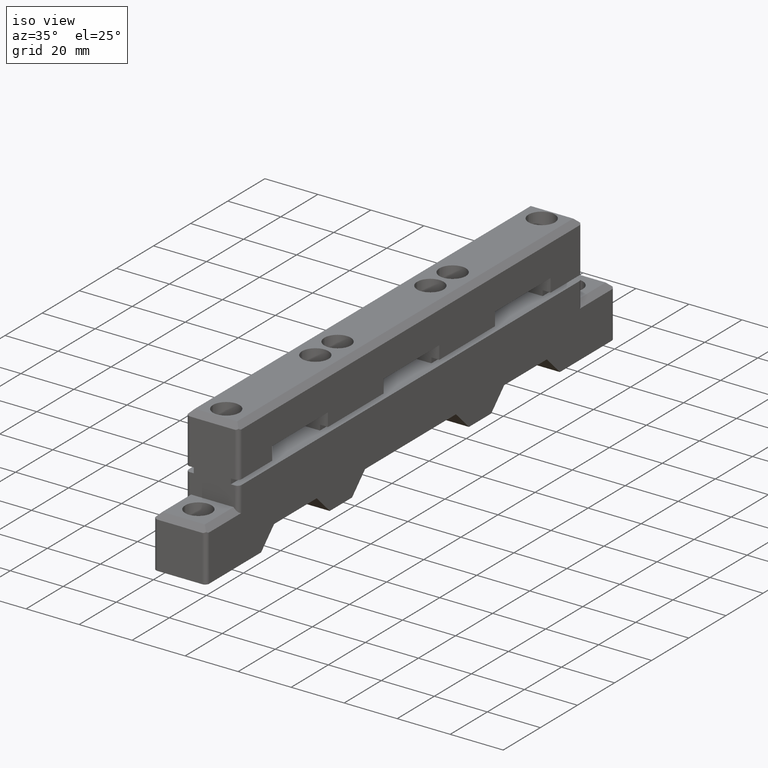
[diagram: clean part render]
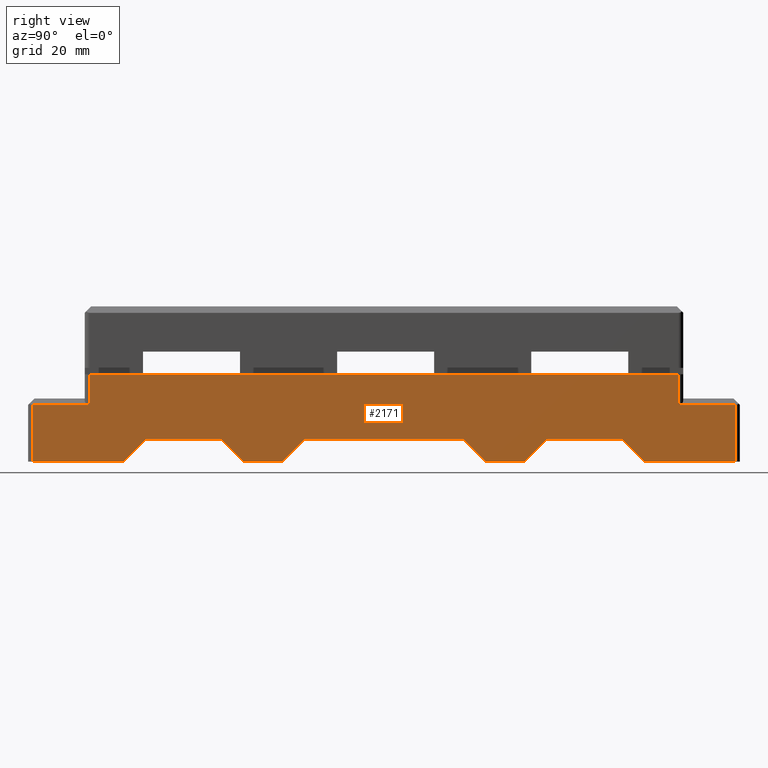
[diagram: tour spotlight — one face highlighted and labeled with its STEP entity id]
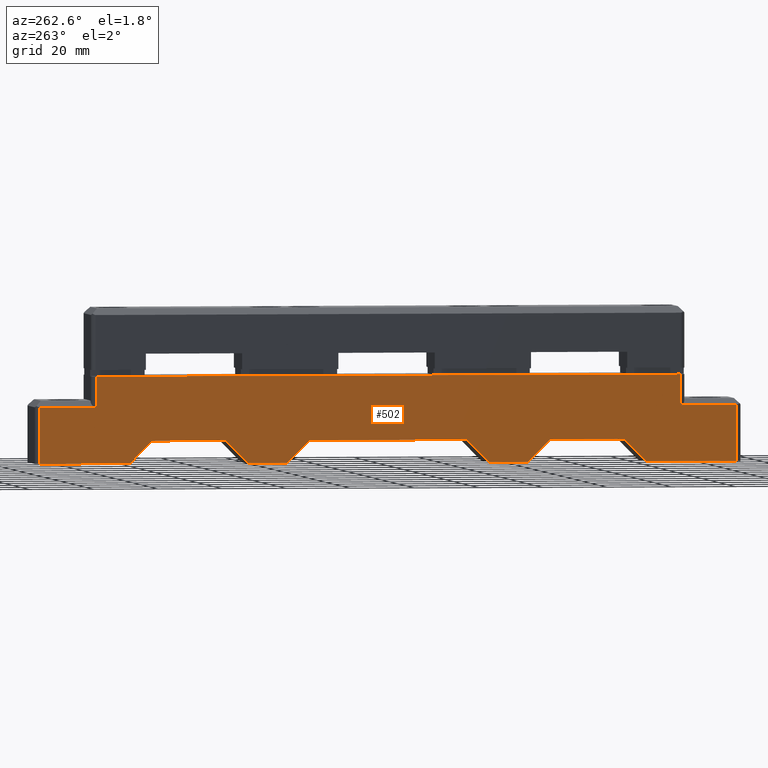
[diagram: tour spotlight — one face highlighted and labeled with its STEP entity id]
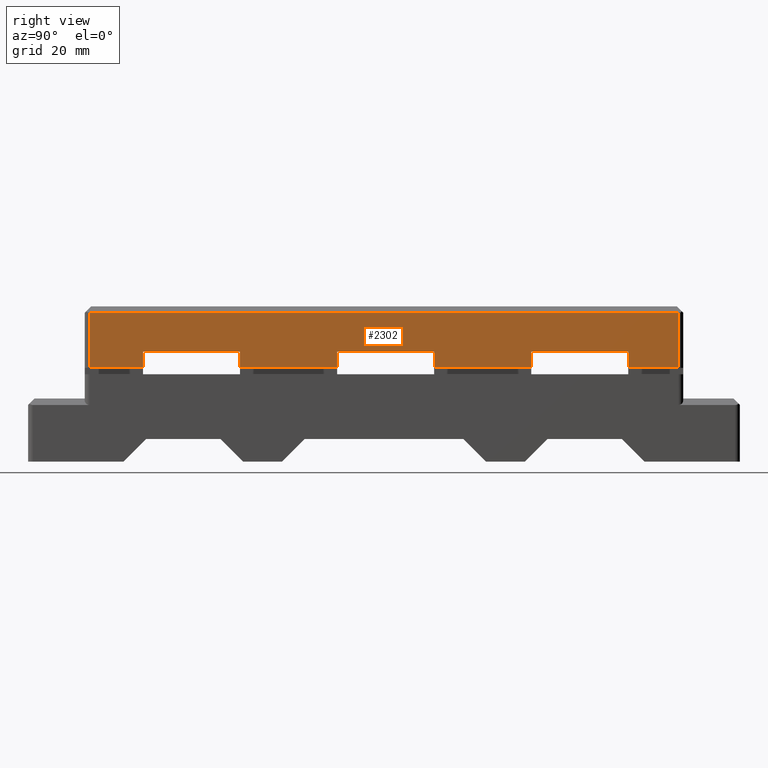
[diagram: tour spotlight — one face highlighted and labeled with its STEP entity id]
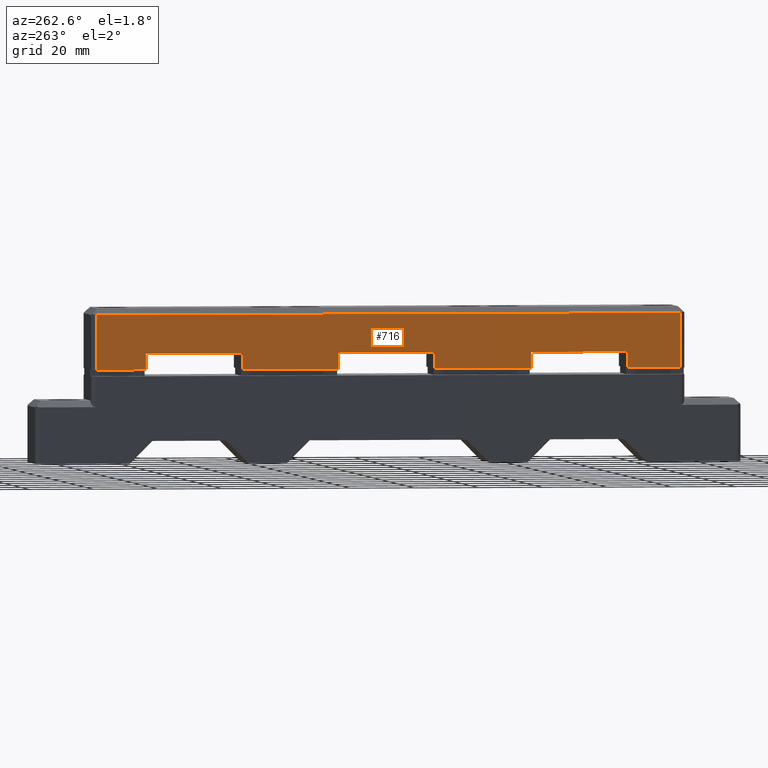
[diagram: tour spotlight — one face highlighted and labeled with its STEP entity id]
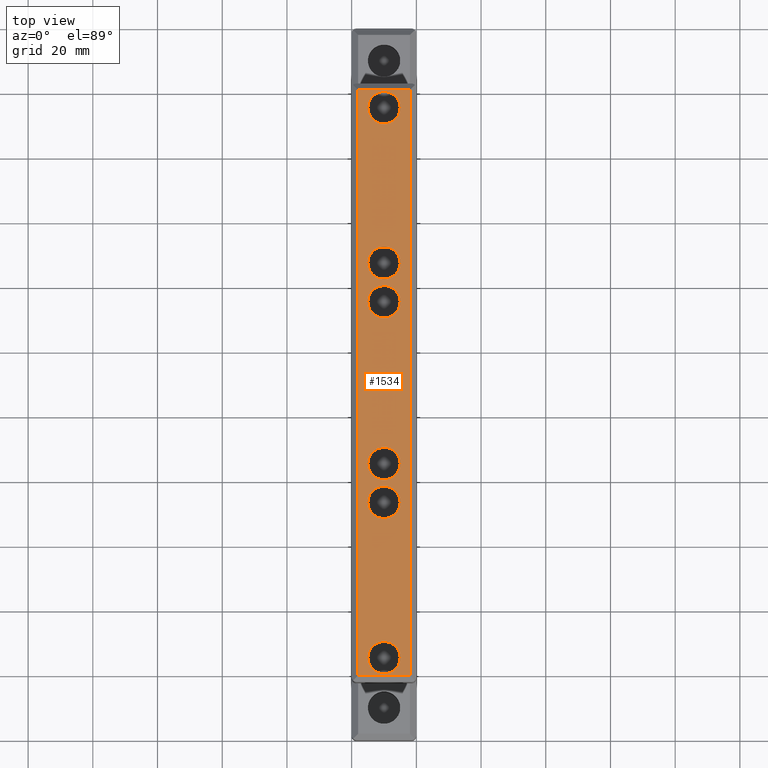
[diagram: tour spotlight — one face highlighted and labeled with its STEP entity id]
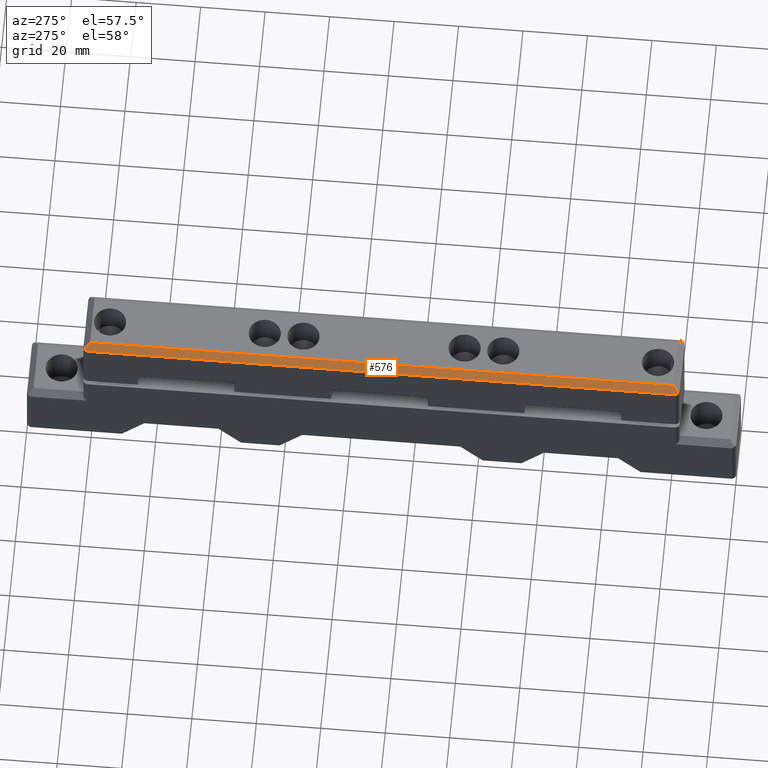
[diagram: tour spotlight — one face highlighted and labeled with its STEP entity id]
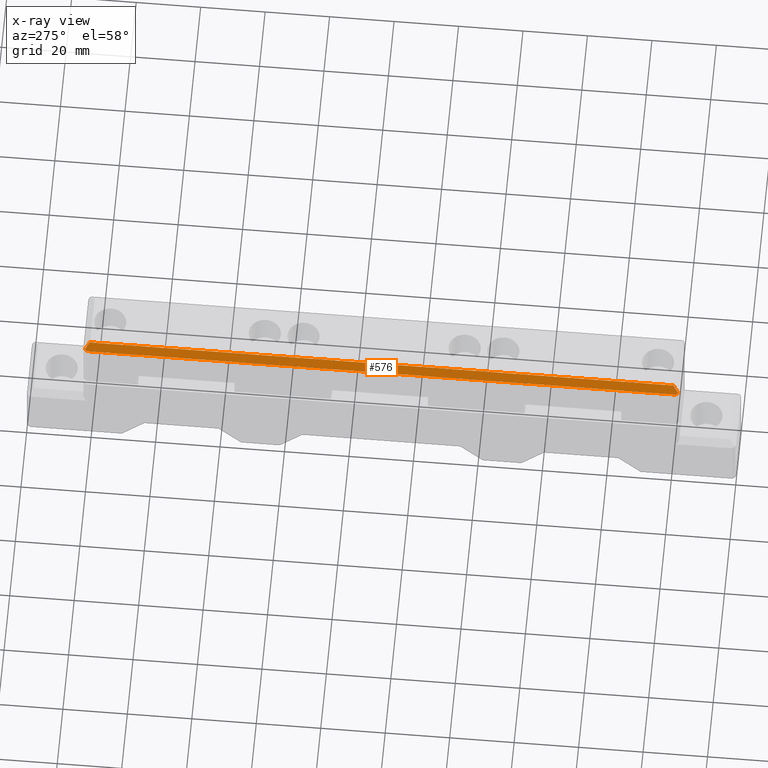
[diagram: x-ray of the same camera — body ghosted, this tour face saturated]
A machine part: a face-by-face anatomy tour. The part has 96 B-rep faces; the first image is the clean iso view, then the 6 largest visible faces are spotlighted one at a time (largest first), each with its STEP entity span.

Face 1 — right view, entity #2171. In plain terms, the highlighted planar face has unit normal (1, -0, -0).
Definition (entity closure, byte-faithful):
#26 = CARTESIAN_POINT ( 'NONE',  ( 218.5000000000000000, 17.50000000000000000, 0.0000000000000000000 ) ) ;
#48 = EDGE_CURVE ( 'NONE', #2899, #1735, #1005, .T. ) ;
#72 = VERTEX_POINT ( 'NONE', #1129 ) ;
#76 = CARTESIAN_POINT ( 'NONE',  ( 66.50000000000000000, 6.536124748764180300E-030, 0.0000000000000000000 ) ) ;
#79 = DIRECTION ( 'NONE',  ( 1.000000000000000000, 1.885568995626964800E-016, 0.0000000000000000000 ) ) ;
#84 = CARTESIAN_POINT ( 'NONE',  ( 85.50000000000000000, 7.000000000000000000, 0.0000000000000000000 ) ) ;
#121 = VERTEX_POINT ( 'NONE', #1466 ) ;
#147 = CARTESIAN_POINT ( 'NONE',  ( 19.00000000000000000, 17.50000000000000000, 0.0000000000000000000 ) ) ;
#162 = CARTESIAN_POINT ( 'NONE',  ( 218.5000000000000000, 9.988721406482938900E-031, 0.0000000000000000000 ) ) ;
#212 = CARTESIAN_POINT ( 'NONE',  ( 201.0000000000000000, 17.50000000000000000, 0.0000000000000000000 ) ) ;
#230 = ORIENTED_EDGE ( 'NONE', *, *, #2845, .T. ) ;
#237 = CARTESIAN_POINT ( 'NONE',  ( 141.5000000000000000, 3.211488182265715200E-029, 0.0000000000000000000 ) ) ;
#240 = VERTEX_POINT ( 'NONE', #1982 ) ;
#299 = VECTOR ( 'NONE', #2369, 1000.000000000000000 ) ;
#352 = ORIENTED_EDGE ( 'NONE', *, *, #453, .T. ) ;
#388 = VECTOR ( 'NONE', #1462, 1000.000000000000000 ) ;
#391 = LINE ( 'NONE', #1929, #2184 ) ;
#395 = DIRECTION ( 'NONE',  ( 1.000000000000000000, 1.593113396305229900E-016, 0.0000000000000000000 ) ) ;
#428 = CARTESIAN_POINT ( 'NONE',  ( 153.5000000000000000, -1.126669017466531900E-029, 0.0000000000000000000 ) ) ;
#441 = ORIENTED_EDGE ( 'NONE', *, *, #2817, .T. ) ;
#453 = EDGE_CURVE ( 'NONE', #2181, #2312, #2742, .T. ) ;
#463 = CARTESIAN_POINT ( 'NONE',  ( 78.50000000000000000, 3.724267029958820100E-029, 0.0000000000000000000 ) ) ;
#465 = CARTESIAN_POINT ( 'NONE',  ( 29.50000000000000000, 0.0000000000000000000, 0.0000000000000000000 ) ) ;
#476 = ORIENTED_EDGE ( 'NONE', *, *, #482, .T. ) ;
#482 = EDGE_CURVE ( 'NONE', #571, #513, #582, .T. ) ;
#493 = VECTOR ( 'NONE', #1419, 1000.000000000000000 ) ;
#513 = VERTEX_POINT ( 'NONE', #2598 ) ;
#557 = VERTEX_POINT ( 'NONE', #2397 ) ;
#571 = VERTEX_POINT ( 'NONE', #212 ) ;
#582 = LINE ( 'NONE', #2096, #1496 ) ;
#587 = ORIENTED_EDGE ( 'NONE', *, *, #1787, .T. ) ;
#673 = ORIENTED_EDGE ( 'NONE', *, *, #1928, .T. ) ;
#682 = EDGE_CURVE ( 'NONE', #2251, #3064, #2021, .T. ) ;
#689 = CARTESIAN_POINT ( 'NONE',  ( 1.500000000000000000, 19.50000000000000000, 0.0000000000000000000 ) ) ;
#750 = VERTEX_POINT ( 'NONE', #76 ) ;
#777 = CARTESIAN_POINT ( 'NONE',  ( 17.50000000000000000, 27.00000000000000000, 0.0000000000000000000 ) ) ;
#856 = ORIENTED_EDGE ( 'NONE', *, *, #938, .T. ) ;
#889 = CARTESIAN_POINT ( 'NONE',  ( 134.5000000000000000, 7.000000000000000000, 0.0000000000000000000 ) ) ;
#938 = EDGE_CURVE ( 'NONE', #2312, #557, #3008, .T. ) ;
#1005 = LINE ( 'NONE', #428, #2950 ) ;
#1020 = VECTOR ( 'NONE', #1681, 1000.000000000000000 ) ;
#1058 = EDGE_CURVE ( 'NONE', #72, #750, #2165, .T. ) ;
#1083 = PLANE ( 'NONE',  #3053 ) ;
#1121 = VERTEX_POINT ( 'NONE', #2316 ) ;
#1129 = CARTESIAN_POINT ( 'NONE',  ( 59.50000000000000000, 7.000000000000000000, 0.0000000000000000000 ) ) ;
#1135 = LINE ( 'NONE', #2045, #1477 ) ;
#1157 = CARTESIAN_POINT ( 'NONE',  ( 59.50000000000000000, 7.000000000000000000, 0.0000000000000000000 ) ) ;
#1164 = VECTOR ( 'NONE', #1606, 1000.000000000000000 ) ;
#1228 = EDGE_CURVE ( 'NONE', #1121, #240, #2394, .T. ) ;
#1242 = VECTOR ( 'NONE', #2607, 1000.000000000000100 ) ;
#1259 = VECTOR ( 'NONE', #1919, 1000.000000000000000 ) ;
#1261 = VECTOR ( 'NONE', #2887, 1000.000000000000000 ) ;
#1266 = DIRECTION ( 'NONE',  ( -1.000000000000000000, 0.0000000000000000000, 0.0000000000000000000 ) ) ;
#1289 = CARTESIAN_POINT ( 'NONE',  ( 190.5000000000000000, 1.964448543274980000E-029, 0.0000000000000000000 ) ) ;
#1322 = LINE ( 'NONE', #777, #2848 ) ;
#1332 = ORIENTED_EDGE ( 'NONE', *, *, #2430, .T. ) ;
#1333 = EDGE_LOOP ( 'NONE', ( #1555, #1856, #2524, #1609, #3189, #673, #587, #1807, #3173, #3021, #352, #856, #441, #1743, #230, #2547, #1892, #3177, #1332, #476 ) ) ;
#1354 = CARTESIAN_POINT ( 'NONE',  ( 1.500000000000000000, 17.50000000000000000, 0.0000000000000000000 ) ) ;
#1403 = FACE_OUTER_BOUND ( 'NONE', #1333, .T. ) ;
#1411 = VERTEX_POINT ( 'NONE', #26 ) ;
#1419 = DIRECTION ( 'NONE',  ( -1.000000000000000000, -2.238352872228140100E-016, 0.0000000000000000000 ) ) ;
#1420 = VECTOR ( 'NONE', #2646, 1000.000000000000100 ) ;
#1429 = VERTEX_POINT ( 'NONE', #1530 ) ;
#1456 = VECTOR ( 'NONE', #395, 1000.000000000000000 ) ;
#1462 = DIRECTION ( 'NONE',  ( 0.0000000000000000000, -1.000000000000000000, 0.0000000000000000000 ) ) ;
#1466 = CARTESIAN_POINT ( 'NONE',  ( 36.50000000000000000, 7.000000000000000000, 0.0000000000000000000 ) ) ;
#1475 = LINE ( 'NONE', #689, #1020 ) ;
#1477 = VECTOR ( 'NONE', #2080, 1000.000000000000000 ) ;
#1496 = VECTOR ( 'NONE', #2335, 1000.000000000000000 ) ;
#1525 = CARTESIAN_POINT ( 'NONE',  ( 66.50000000000000000, 6.536124748764180300E-030, 0.0000000000000000000 ) ) ;
#1530 = CARTESIAN_POINT ( 'NONE',  ( 78.50000000000000000, 3.724267029958820100E-029, 0.0000000000000000000 ) ) ;
#1539 = LINE ( 'NONE', #1157, #2625 ) ;
#1543 = DIRECTION ( 'NONE',  ( 1.000000000000000000, -6.659147604321950200E-031, 0.0000000000000000000 ) ) ;
#1555 = ORIENTED_EDGE ( 'NONE', *, *, #2730, .T. ) ;
#1556 = LINE ( 'NONE', #1289, #2043 ) ;
#1581 = LINE ( 'NONE', #2876, #1261 ) ;
#1606 = DIRECTION ( 'NONE',  ( 1.000000000000000000, 2.558878795902000100E-030, 0.0000000000000000000 ) ) ;
#1609 = ORIENTED_EDGE ( 'NONE', *, *, #3158, .T. ) ;
#1613 = VERTEX_POINT ( 'NONE', #1354 ) ;
#1665 = CARTESIAN_POINT ( 'NONE',  ( 160.5000000000000000, 7.000000000000000000, 0.0000000000000000000 ) ) ;
#1681 = DIRECTION ( 'NONE',  ( 0.0000000000000000000, -1.000000000000000000, 0.0000000000000000000 ) ) ;
#1686 = EDGE_CURVE ( 'NONE', #2399, #1411, #2212, .T. ) ;
#1735 = VERTEX_POINT ( 'NONE', #1665 ) ;
#1743 = ORIENTED_EDGE ( 'NONE', *, *, #48, .T. ) ;
#1787 = EDGE_CURVE ( 'NONE', #121, #72, #1539, .T. ) ;
#1788 = LINE ( 'NONE', #2785, #2929 ) ;
#1797 = DIRECTION ( 'NONE',  ( 1.000000000000000000, 0.0000000000000000000, 0.0000000000000000000 ) ) ;
#1807 = ORIENTED_EDGE ( 'NONE', *, *, #1058, .T. ) ;
#1856 = ORIENTED_EDGE ( 'NONE', *, *, #682, .T. ) ;
#1864 = LINE ( 'NONE', #2593, #493 ) ;
#1868 = EDGE_CURVE ( 'NONE', #1870, #2372, #1581, .T. ) ;
#1870 = VERTEX_POINT ( 'NONE', #2596 ) ;
#1887 = CARTESIAN_POINT ( 'NONE',  ( 66.50000000000000000, 6.536124748764180300E-030, 0.0000000000000000000 ) ) ;
#1892 = ORIENTED_EDGE ( 'NONE', *, *, #2779, .T. ) ;
#1919 = DIRECTION ( 'NONE',  ( 0.0000000000000000000, 1.000000000000000000, 0.0000000000000000000 ) ) ;
#1928 = EDGE_CURVE ( 'NONE', #2372, #121, #3145, .T. ) ;
#1929 = CARTESIAN_POINT ( 'NONE',  ( 0.0000000000000000000, 17.50000000000000000, 0.0000000000000000000 ) ) ;
#1943 = VECTOR ( 'NONE', #3171, 1000.000000000000100 ) ;
#1982 = CARTESIAN_POINT ( 'NONE',  ( 190.5000000000000000, 1.964448543274980000E-029, 0.0000000000000000000 ) ) ;
#1985 = EDGE_CURVE ( 'NONE', #3064, #1613, #391, .T. ) ;
#2018 = DIRECTION ( 'NONE',  ( 0.7071067811865465700, -0.7071067811865485700, 0.0000000000000000000 ) ) ;
#2021 = LINE ( 'NONE', #2611, #388 ) ;
#2043 = VECTOR ( 'NONE', #1543, 1000.000000000000000 ) ;
#2045 = CARTESIAN_POINT ( 'NONE',  ( 141.5000000000000000, 3.211488182265715200E-029, 0.0000000000000000000 ) ) ;
#2080 = DIRECTION ( 'NONE',  ( 1.000000000000000000, -3.615130999776855500E-030, 0.0000000000000000000 ) ) ;
#2090 = VECTOR ( 'NONE', #2018, 1000.000000000000000 ) ;
#2096 = CARTESIAN_POINT ( 'NONE',  ( 201.0000000000000000, 19.50000000000000000, 0.0000000000000000000 ) ) ;
#2124 = DIRECTION ( 'NONE',  ( 0.7071067811865510100, 0.7071067811865441300, 0.0000000000000000000 ) ) ;
#2165 = LINE ( 'NONE', #1525, #2090 ) ;
#2171 = ADVANCED_FACE ( 'NONE', ( #1403 ), #1083, .T. ) ;
#2181 = VERTEX_POINT ( 'NONE', #84 ) ;
#2184 = VECTOR ( 'NONE', #2442, 1000.000000000000000 ) ;
#2212 = LINE ( 'NONE', #2854, #1259 ) ;
#2251 = VERTEX_POINT ( 'NONE', #3033 ) ;
#2312 = VERTEX_POINT ( 'NONE', #889 ) ;
#2316 = CARTESIAN_POINT ( 'NONE',  ( 183.5000000000000000, 7.000000000000000000, 0.0000000000000000000 ) ) ;
#2335 = DIRECTION ( 'NONE',  ( 0.0000000000000000000, 1.000000000000000000, 0.0000000000000000000 ) ) ;
#2362 = DIRECTION ( 'NONE',  ( 1.000000000000000000, 7.542275982507859600E-017, 0.0000000000000000000 ) ) ;
#2369 = DIRECTION ( 'NONE',  ( 0.7071067811865450200, -0.7071067811865500200, 0.0000000000000000000 ) ) ;
#2372 = VERTEX_POINT ( 'NONE', #2561 ) ;
#2381 = LINE ( 'NONE', #463, #1242 ) ;
#2394 = LINE ( 'NONE', #3112, #299 ) ;
#2397 = CARTESIAN_POINT ( 'NONE',  ( 141.5000000000000000, 3.211488182265715200E-029, 0.0000000000000000000 ) ) ;
#2399 = VERTEX_POINT ( 'NONE', #162 ) ;
#2414 = EDGE_CURVE ( 'NONE', #1429, #2181, #2381, .T. ) ;
#2430 = EDGE_CURVE ( 'NONE', #1411, #571, #1864, .T. ) ;
#2442 = DIRECTION ( 'NONE',  ( -1.000000000000000000, 0.0000000000000000000, 0.0000000000000000000 ) ) ;
#2455 = LINE ( 'NONE', #1887, #1164 ) ;
#2524 = ORIENTED_EDGE ( 'NONE', *, *, #1985, .T. ) ;
#2536 = CARTESIAN_POINT ( 'NONE',  ( 0.0000000000000000000, 19.50000000000000000, 0.0000000000000000000 ) ) ;
#2547 = ORIENTED_EDGE ( 'NONE', *, *, #1228, .T. ) ;
#2550 = CARTESIAN_POINT ( 'NONE',  ( 153.5000000000000000, -1.126669017466531900E-029, 0.0000000000000000000 ) ) ;
#2561 = CARTESIAN_POINT ( 'NONE',  ( 29.50000000000000000, 0.0000000000000000000, 0.0000000000000000000 ) ) ;
#2593 = CARTESIAN_POINT ( 'NONE',  ( 4.476705744456424300E-016, 17.50000000000000000, 0.0000000000000000000 ) ) ;
#2596 = CARTESIAN_POINT ( 'NONE',  ( 1.500000000000000000, 0.0000000000000000000, 0.0000000000000000000 ) ) ;
#2598 = CARTESIAN_POINT ( 'NONE',  ( 201.0000000000000000, 27.00000000000000000, 0.0000000000000000000 ) ) ;
#2607 = DIRECTION ( 'NONE',  ( 0.7071067811865489100, 0.7071067811865460200, 0.0000000000000000000 ) ) ;
#2611 = CARTESIAN_POINT ( 'NONE',  ( 19.00000000000000000, 19.50000000000000000, 0.0000000000000000000 ) ) ;
#2625 = VECTOR ( 'NONE', #2362, 1000.000000000000000 ) ;
#2646 = DIRECTION ( 'NONE',  ( 0.7071067811865460200, 0.7071067811865489100, 0.0000000000000000000 ) ) ;
#2730 = EDGE_CURVE ( 'NONE', #513, #2251, #1322, .T. ) ;
#2742 = LINE ( 'NONE', #2806, #1456 ) ;
#2779 = EDGE_CURVE ( 'NONE', #240, #2399, #1556, .T. ) ;
#2785 = CARTESIAN_POINT ( 'NONE',  ( 183.5000000000000000, 7.000000000000000000, 0.0000000000000000000 ) ) ;
#2806 = CARTESIAN_POINT ( 'NONE',  ( 134.5000000000000000, 7.000000000000000000, 0.0000000000000000000 ) ) ;
#2817 = EDGE_CURVE ( 'NONE', #557, #2899, #1135, .T. ) ;
#2845 = EDGE_CURVE ( 'NONE', #1735, #1121, #1788, .T. ) ;
#2848 = VECTOR ( 'NONE', #1266, 1000.000000000000000 ) ;
#2854 = CARTESIAN_POINT ( 'NONE',  ( 218.5000000000000000, 19.50000000000000000, 0.0000000000000000000 ) ) ;
#2876 = CARTESIAN_POINT ( 'NONE',  ( 0.0000000000000000000, 0.0000000000000000000, 0.0000000000000000000 ) ) ;
#2887 = DIRECTION ( 'NONE',  ( 1.000000000000000000, 0.0000000000000000000, 0.0000000000000000000 ) ) ;
#2899 = VERTEX_POINT ( 'NONE', #2550 ) ;
#2929 = VECTOR ( 'NONE', #79, 1000.000000000000000 ) ;
#2950 = VECTOR ( 'NONE', #2124, 999.9999999999998900 ) ;
#2999 = DIRECTION ( 'NONE',  ( 0.0000000000000000000, 0.0000000000000000000, 1.000000000000000000 ) ) ;
#3008 = LINE ( 'NONE', #237, #1943 ) ;
#3013 = EDGE_CURVE ( 'NONE', #750, #1429, #2455, .T. ) ;
#3021 = ORIENTED_EDGE ( 'NONE', *, *, #2414, .T. ) ;
#3033 = CARTESIAN_POINT ( 'NONE',  ( 19.00000000000000000, 27.00000000000000000, 0.0000000000000000000 ) ) ;
#3053 = AXIS2_PLACEMENT_3D ( 'NONE', #2536, #2999, #1797 ) ;
#3064 = VERTEX_POINT ( 'NONE', #147 ) ;
#3112 = CARTESIAN_POINT ( 'NONE',  ( 190.5000000000000000, 1.964448543274980000E-029, 0.0000000000000000000 ) ) ;
#3145 = LINE ( 'NONE', #465, #1420 ) ;
#3158 = EDGE_CURVE ( 'NONE', #1613, #1870, #1475, .T. ) ;
#3171 = DIRECTION ( 'NONE',  ( 0.7071067811865460200, -0.7071067811865489100, 0.0000000000000000000 ) ) ;
#3173 = ORIENTED_EDGE ( 'NONE', *, *, #3013, .T. ) ;
#3177 = ORIENTED_EDGE ( 'NONE', *, *, #1686, .T. ) ;
#3189 = ORIENTED_EDGE ( 'NONE', *, *, #1868, .T. ) ;

Face 2 — auxiliary view, entity #502. In plain terms, the highlighted planar face has unit normal (1, -0, -0).
Definition (entity closure, byte-faithful):
#40 = CARTESIAN_POINT ( 'NONE',  ( 17.50000000000000000, 27.00000000000000000, -20.00000000000000000 ) ) ;
#53 = VERTEX_POINT ( 'NONE', #630 ) ;
#63 = VERTEX_POINT ( 'NONE', #1601 ) ;
#64 = CARTESIAN_POINT ( 'NONE',  ( 141.5000000000000000, 3.211488182265715200E-029, -20.00000000000000000 ) ) ;
#89 = LINE ( 'NONE', #105, #1137 ) ;
#100 = CARTESIAN_POINT ( 'NONE',  ( 134.5000000000000000, 7.000000000000000000, -20.00000000000000000 ) ) ;
#105 = CARTESIAN_POINT ( 'NONE',  ( 1.500000000000000000, 17.50000000000000000, -20.00000000000000000 ) ) ;
#123 = VECTOR ( 'NONE', #1012, 999.9999999999998900 ) ;
#139 = LINE ( 'NONE', #1798, #2172 ) ;
#167 = LINE ( 'NONE', #786, #759 ) ;
#216 = LINE ( 'NONE', #2272, #1486 ) ;
#223 = LINE ( 'NONE', #64, #2738 ) ;
#248 = VERTEX_POINT ( 'NONE', #308 ) ;
#262 = ORIENTED_EDGE ( 'NONE', *, *, #730, .F. ) ;
#283 = DIRECTION ( 'NONE',  ( -1.000000000000000000, 0.0000000000000000000, 0.0000000000000000000 ) ) ;
#296 = ORIENTED_EDGE ( 'NONE', *, *, #2476, .T. ) ;
#308 = CARTESIAN_POINT ( 'NONE',  ( 218.5000000000000000, 17.50000000000000000, -20.00000000000000000 ) ) ;
#314 = VERTEX_POINT ( 'NONE', #1801 ) ;
#339 = CARTESIAN_POINT ( 'NONE',  ( 201.0000000000000000, 17.50000000000000000, -20.00000000000000000 ) ) ;
#369 = VERTEX_POINT ( 'NONE', #100 ) ;
#384 = LINE ( 'NONE', #2796, #2315 ) ;
#386 = PLANE ( 'NONE',  #2954 ) ;
#467 = CARTESIAN_POINT ( 'NONE',  ( 190.5000000000000000, 1.964448543274980000E-029, -20.00000000000000000 ) ) ;
#487 = VECTOR ( 'NONE', #2822, 1000.000000000000000 ) ;
#502 = ADVANCED_FACE ( 'NONE', ( #1044 ), #386, .F. ) ;
#522 = VERTEX_POINT ( 'NONE', #953 ) ;
#558 = VERTEX_POINT ( 'NONE', #1930 ) ;
#596 = VERTEX_POINT ( 'NONE', #3116 ) ;
#604 = VECTOR ( 'NONE', #3131, 1000.000000000000000 ) ;
#625 = LINE ( 'NONE', #2406, #2985 ) ;
#630 = CARTESIAN_POINT ( 'NONE',  ( 19.00000000000000000, 17.50000000000000000, -20.00000000000000000 ) ) ;
#632 = CARTESIAN_POINT ( 'NONE',  ( 0.0000000000000000000, 19.50000000000000000, -20.00000000000000000 ) ) ;
#703 = VERTEX_POINT ( 'NONE', #3174 ) ;
#708 = EDGE_CURVE ( 'NONE', #369, #757, #223, .T. ) ;
#730 = EDGE_CURVE ( 'NONE', #926, #703, #139, .T. ) ;
#757 = VERTEX_POINT ( 'NONE', #2479 ) ;
#759 = VECTOR ( 'NONE', #1056, 1000.000000000000000 ) ;
#786 = CARTESIAN_POINT ( 'NONE',  ( 183.5000000000000000, 7.000000000000000000, -20.00000000000000000 ) ) ;
#800 = DIRECTION ( 'NONE',  ( 0.7071067811865465700, -0.7071067811865485700, 0.0000000000000000000 ) ) ;
#926 = VERTEX_POINT ( 'NONE', #2179 ) ;
#953 = CARTESIAN_POINT ( 'NONE',  ( 85.50000000000000000, 7.000000000000000000, -20.00000000000000000 ) ) ;
#971 = LINE ( 'NONE', #2609, #1653 ) ;
#980 = DIRECTION ( 'NONE',  ( 1.000000000000000000, -3.615130999776855500E-030, 0.0000000000000000000 ) ) ;
#1012 = DIRECTION ( 'NONE',  ( 0.7071067811865510100, 0.7071067811865441300, 0.0000000000000000000 ) ) ;
#1030 = VECTOR ( 'NONE', #1983, 1000.000000000000000 ) ;
#1031 = EDGE_CURVE ( 'NONE', #314, #926, #216, .T. ) ;
#1038 = CARTESIAN_POINT ( 'NONE',  ( 160.5000000000000000, 7.000000000000000000, -20.00000000000000000 ) ) ;
#1041 = ORIENTED_EDGE ( 'NONE', *, *, #1944, .F. ) ;
#1044 = FACE_OUTER_BOUND ( 'NONE', #1387, .T. ) ;
#1050 = CARTESIAN_POINT ( 'NONE',  ( 183.5000000000000000, 7.000000000000000000, -20.00000000000000000 ) ) ;
#1053 = DIRECTION ( 'NONE',  ( 1.000000000000000000, 2.558878795902000100E-030, 0.0000000000000000000 ) ) ;
#1056 = DIRECTION ( 'NONE',  ( 1.000000000000000000, 1.885568995626964800E-016, 0.0000000000000000000 ) ) ;
#1074 = ORIENTED_EDGE ( 'NONE', *, *, #1931, .F. ) ;
#1078 = DIRECTION ( 'NONE',  ( 1.000000000000000000, -6.659147604321950200E-031, 0.0000000000000000000 ) ) ;
#1119 = VECTOR ( 'NONE', #1690, 1000.000000000000000 ) ;
#1127 = EDGE_CURVE ( 'NONE', #1451, #314, #3096, .T. ) ;
#1137 = VECTOR ( 'NONE', #1612, 1000.000000000000000 ) ;
#1141 = DIRECTION ( 'NONE',  ( 0.0000000000000000000, 0.0000000000000000000, 1.000000000000000000 ) ) ;
#1162 = EDGE_CURVE ( 'NONE', #558, #53, #2818, .T. ) ;
#1183 = CARTESIAN_POINT ( 'NONE',  ( 19.00000000000000000, 27.00000000000000000, -20.00000000000000000 ) ) ;
#1209 = DIRECTION ( 'NONE',  ( 1.000000000000000000, 1.593113396305229900E-016, 0.0000000000000000000 ) ) ;
#1240 = CARTESIAN_POINT ( 'NONE',  ( 218.5000000000000000, 9.988721406482938900E-031, -20.00000000000000000 ) ) ;
#1241 = ORIENTED_EDGE ( 'NONE', *, *, #2909, .F. ) ;
#1272 = DIRECTION ( 'NONE',  ( 0.7071067811865460200, -0.7071067811865489100, 0.0000000000000000000 ) ) ;
#1305 = ORIENTED_EDGE ( 'NONE', *, *, #1832, .T. ) ;
#1335 = VECTOR ( 'NONE', #1580, 1000.000000000000000 ) ;
#1343 = DIRECTION ( 'NONE',  ( 1.000000000000000000, 2.238352872228140100E-016, 0.0000000000000000000 ) ) ;
#1350 = EDGE_CURVE ( 'NONE', #703, #522, #1364, .T. ) ;
#1353 = VERTEX_POINT ( 'NONE', #3179 ) ;
#1359 = CARTESIAN_POINT ( 'NONE',  ( 29.50000000000000000, 0.0000000000000000000, -20.00000000000000000 ) ) ;
#1364 = LINE ( 'NONE', #1684, #1866 ) ;
#1376 = CARTESIAN_POINT ( 'NONE',  ( 190.5000000000000000, 1.964448543274980000E-029, -20.00000000000000000 ) ) ;
#1387 = EDGE_LOOP ( 'NONE', ( #2481, #1305, #2453, #2042, #1241, #1410, #1829, #2551, #2953, #2095, #1074, #2349, #262, #1633, #1994, #2770, #1041, #2639, #2647, #296 ) ) ;
#1388 = VERTEX_POINT ( 'NONE', #1240 ) ;
#1398 = CARTESIAN_POINT ( 'NONE',  ( 141.5000000000000000, 3.211488182265715200E-029, -20.00000000000000000 ) ) ;
#1401 = VECTOR ( 'NONE', #283, 1000.000000000000000 ) ;
#1410 = ORIENTED_EDGE ( 'NONE', *, *, #3030, .F. ) ;
#1434 = EDGE_CURVE ( 'NONE', #248, #1388, #2382, .T. ) ;
#1451 = VERTEX_POINT ( 'NONE', #2221 ) ;
#1469 = CARTESIAN_POINT ( 'NONE',  ( 153.5000000000000000, -1.126669017466531900E-029, -20.00000000000000000 ) ) ;
#1486 = VECTOR ( 'NONE', #800, 1000.000000000000000 ) ;
#1580 = DIRECTION ( 'NONE',  ( 1.000000000000000000, 0.0000000000000000000, 0.0000000000000000000 ) ) ;
#1601 = CARTESIAN_POINT ( 'NONE',  ( 19.00000000000000000, 27.00000000000000000, -20.00000000000000000 ) ) ;
#1612 = DIRECTION ( 'NONE',  ( -0.0000000000000000000, 1.000000000000000000, -0.0000000000000000000 ) ) ;
#1633 = ORIENTED_EDGE ( 'NONE', *, *, #1031, .F. ) ;
#1635 = CARTESIAN_POINT ( 'NONE',  ( 201.0000000000000000, 27.00000000000000000, -20.00000000000000000 ) ) ;
#1653 = VECTOR ( 'NONE', #2106, 1000.000000000000000 ) ;
#1662 = EDGE_CURVE ( 'NONE', #2856, #248, #384, .T. ) ;
#1684 = CARTESIAN_POINT ( 'NONE',  ( 78.50000000000000000, 3.724267029958820100E-029, -20.00000000000000000 ) ) ;
#1690 = DIRECTION ( 'NONE',  ( 1.000000000000000000, 0.0000000000000000000, 0.0000000000000000000 ) ) ;
#1714 = LINE ( 'NONE', #1376, #487 ) ;
#1717 = LINE ( 'NONE', #2588, #3119 ) ;
#1798 = CARTESIAN_POINT ( 'NONE',  ( 66.50000000000000000, 6.536124748764180300E-030, -20.00000000000000000 ) ) ;
#1801 = CARTESIAN_POINT ( 'NONE',  ( 59.50000000000000000, 7.000000000000000000, -20.00000000000000000 ) ) ;
#1829 = ORIENTED_EDGE ( 'NONE', *, *, #2735, .F. ) ;
#1832 = EDGE_CURVE ( 'NONE', #2416, #2856, #971, .T. ) ;
#1861 = LINE ( 'NONE', #2512, #2198 ) ;
#1866 = VECTOR ( 'NONE', #2927, 1000.000000000000100 ) ;
#1915 = CARTESIAN_POINT ( 'NONE',  ( 0.0000000000000000000, 0.0000000000000000000, -20.00000000000000000 ) ) ;
#1930 = CARTESIAN_POINT ( 'NONE',  ( 1.500000000000000000, 17.50000000000000000, -20.00000000000000000 ) ) ;
#1931 = EDGE_CURVE ( 'NONE', #522, #369, #625, .T. ) ;
#1944 = EDGE_CURVE ( 'NONE', #596, #2307, #3059, .T. ) ;
#1983 = DIRECTION ( 'NONE',  ( -0.0000000000000000000, -1.000000000000000000, -0.0000000000000000000 ) ) ;
#1993 = CARTESIAN_POINT ( 'NONE',  ( 218.5000000000000000, 0.0000000000000000000, -20.00000000000000000 ) ) ;
#1994 = ORIENTED_EDGE ( 'NONE', *, *, #1127, .F. ) ;
#2033 = VERTEX_POINT ( 'NONE', #1050 ) ;
#2042 = ORIENTED_EDGE ( 'NONE', *, *, #1434, .T. ) ;
#2049 = VERTEX_POINT ( 'NONE', #1038 ) ;
#2089 = CARTESIAN_POINT ( 'NONE',  ( 17.50000000000000000, 17.50000000000000000, -20.00000000000000000 ) ) ;
#2095 = ORIENTED_EDGE ( 'NONE', *, *, #708, .F. ) ;
#2106 = DIRECTION ( 'NONE',  ( -0.0000000000000000000, -1.000000000000000000, -0.0000000000000000000 ) ) ;
#2170 = VECTOR ( 'NONE', #2309, 1000.000000000000000 ) ;
#2172 = VECTOR ( 'NONE', #1053, 1000.000000000000000 ) ;
#2179 = CARTESIAN_POINT ( 'NONE',  ( 66.50000000000000000, 6.536124748764180300E-030, -20.00000000000000000 ) ) ;
#2198 = VECTOR ( 'NONE', #1078, 1000.000000000000000 ) ;
#2221 = CARTESIAN_POINT ( 'NONE',  ( 36.50000000000000000, 7.000000000000000000, -20.00000000000000000 ) ) ;
#2225 = LINE ( 'NONE', #1398, #2488 ) ;
#2272 = CARTESIAN_POINT ( 'NONE',  ( 66.50000000000000000, 6.536124748764180300E-030, -20.00000000000000000 ) ) ;
#2307 = VERTEX_POINT ( 'NONE', #1359 ) ;
#2309 = DIRECTION ( 'NONE',  ( 1.000000000000000000, 7.542275982507859600E-017, 0.0000000000000000000 ) ) ;
#2315 = VECTOR ( 'NONE', #1343, 1000.000000000000000 ) ;
#2318 = EDGE_CURVE ( 'NONE', #596, #558, #89, .T. ) ;
#2349 = ORIENTED_EDGE ( 'NONE', *, *, #1350, .F. ) ;
#2366 = DIRECTION ( 'NONE',  ( 0.7071067811865460200, 0.7071067811865489100, 0.0000000000000000000 ) ) ;
#2382 = LINE ( 'NONE', #1993, #1030 ) ;
#2406 = CARTESIAN_POINT ( 'NONE',  ( 134.5000000000000000, 7.000000000000000000, -20.00000000000000000 ) ) ;
#2416 = VERTEX_POINT ( 'NONE', #1635 ) ;
#2453 = ORIENTED_EDGE ( 'NONE', *, *, #1662, .T. ) ;
#2476 = EDGE_CURVE ( 'NONE', #53, #63, #3038, .T. ) ;
#2479 = CARTESIAN_POINT ( 'NONE',  ( 141.5000000000000000, 3.211488182265715200E-029, -20.00000000000000000 ) ) ;
#2481 = ORIENTED_EDGE ( 'NONE', *, *, #2643, .F. ) ;
#2488 = VECTOR ( 'NONE', #980, 1000.000000000000000 ) ;
#2512 = CARTESIAN_POINT ( 'NONE',  ( 190.5000000000000000, 1.964448543274980000E-029, -20.00000000000000000 ) ) ;
#2526 = CARTESIAN_POINT ( 'NONE',  ( 59.50000000000000000, 7.000000000000000000, -20.00000000000000000 ) ) ;
#2551 = ORIENTED_EDGE ( 'NONE', *, *, #2608, .F. ) ;
#2588 = CARTESIAN_POINT ( 'NONE',  ( 29.50000000000000000, 0.0000000000000000000, -20.00000000000000000 ) ) ;
#2608 = EDGE_CURVE ( 'NONE', #1353, #2049, #2965, .T. ) ;
#2609 = CARTESIAN_POINT ( 'NONE',  ( 201.0000000000000000, 17.50000000000000000, -20.00000000000000000 ) ) ;
#2639 = ORIENTED_EDGE ( 'NONE', *, *, #2318, .T. ) ;
#2643 = EDGE_CURVE ( 'NONE', #2416, #63, #2933, .T. ) ;
#2647 = ORIENTED_EDGE ( 'NONE', *, *, #1162, .T. ) ;
#2735 = EDGE_CURVE ( 'NONE', #2049, #2033, #167, .T. ) ;
#2738 = VECTOR ( 'NONE', #1272, 1000.000000000000100 ) ;
#2770 = ORIENTED_EDGE ( 'NONE', *, *, #2986, .F. ) ;
#2796 = CARTESIAN_POINT ( 'NONE',  ( 218.0000000000000000, 17.50000000000000000, -20.00000000000000000 ) ) ;
#2818 = LINE ( 'NONE', #2089, #1335 ) ;
#2822 = DIRECTION ( 'NONE',  ( 0.7071067811865450200, -0.7071067811865500200, 0.0000000000000000000 ) ) ;
#2842 = DIRECTION ( 'NONE',  ( 1.000000000000000000, 0.0000000000000000000, 0.0000000000000000000 ) ) ;
#2856 = VERTEX_POINT ( 'NONE', #339 ) ;
#2909 = EDGE_CURVE ( 'NONE', #3047, #1388, #1861, .T. ) ;
#2927 = DIRECTION ( 'NONE',  ( 0.7071067811865489100, 0.7071067811865460200, 0.0000000000000000000 ) ) ;
#2933 = LINE ( 'NONE', #40, #1401 ) ;
#2953 = ORIENTED_EDGE ( 'NONE', *, *, #3068, .F. ) ;
#2954 = AXIS2_PLACEMENT_3D ( 'NONE', #632, #1141, #2842 ) ;
#2965 = LINE ( 'NONE', #1469, #123 ) ;
#2985 = VECTOR ( 'NONE', #1209, 1000.000000000000000 ) ;
#2986 = EDGE_CURVE ( 'NONE', #2307, #1451, #1717, .T. ) ;
#3030 = EDGE_CURVE ( 'NONE', #2033, #3047, #1714, .T. ) ;
#3038 = LINE ( 'NONE', #1183, #604 ) ;
#3047 = VERTEX_POINT ( 'NONE', #467 ) ;
#3059 = LINE ( 'NONE', #1915, #1119 ) ;
#3068 = EDGE_CURVE ( 'NONE', #757, #1353, #2225, .T. ) ;
#3096 = LINE ( 'NONE', #2526, #2170 ) ;
#3116 = CARTESIAN_POINT ( 'NONE',  ( 1.500000000000000000, 0.0000000000000000000, -20.00000000000000000 ) ) ;
#3119 = VECTOR ( 'NONE', #2366, 1000.000000000000100 ) ;
#3131 = DIRECTION ( 'NONE',  ( -0.0000000000000000000, 1.000000000000000000, -0.0000000000000000000 ) ) ;
#3174 = CARTESIAN_POINT ( 'NONE',  ( 78.50000000000000000, 3.724267029958820100E-029, -20.00000000000000000 ) ) ;
#3179 = CARTESIAN_POINT ( 'NONE',  ( 153.5000000000000000, -1.126669017466531900E-029, -20.00000000000000000 ) ) ;

Face 3 — right view, entity #2302. In plain terms, the highlighted planar face has unit normal (1, -0, -0).
Definition (entity closure, byte-faithful):
#39 = VERTEX_POINT ( 'NONE', #405 ) ;
#47 = LINE ( 'NONE', #3076, #2531 ) ;
#54 = CARTESIAN_POINT ( 'NONE',  ( 185.5000000000000000, 27.00000000000000000, 0.0000000000000000000 ) ) ;
#75 = ORIENTED_EDGE ( 'NONE', *, *, #2961, .F. ) ;
#80 = EDGE_CURVE ( 'NONE', #131, #307, #433, .T. ) ;
#81 = VERTEX_POINT ( 'NONE', #2673 ) ;
#86 = VECTOR ( 'NONE', #1235, 1000.000000000000000 ) ;
#97 = VERTEX_POINT ( 'NONE', #1441 ) ;
#126 = FACE_OUTER_BOUND ( 'NONE', #2716, .T. ) ;
#131 = VERTEX_POINT ( 'NONE', #2174 ) ;
#134 = ORIENTED_EDGE ( 'NONE', *, *, #581, .T. ) ;
#165 = CARTESIAN_POINT ( 'NONE',  ( 95.50000000000000000, 34.00000000000000000, 0.0000000000000000000 ) ) ;
#224 = EDGE_CURVE ( 'NONE', #2412, #97, #1416, .T. ) ;
#258 = VERTEX_POINT ( 'NONE', #1498 ) ;
#307 = VERTEX_POINT ( 'NONE', #613 ) ;
#383 = ORIENTED_EDGE ( 'NONE', *, *, #2667, .T. ) ;
#405 = CARTESIAN_POINT ( 'NONE',  ( 65.50000000000000000, 29.00000000000000000, 0.0000000000000000000 ) ) ;
#409 = VECTOR ( 'NONE', #862, 1000.000000000000000 ) ;
#423 = CARTESIAN_POINT ( 'NONE',  ( 125.5000000000000000, 34.00000000000000000, 0.0000000000000000000 ) ) ;
#433 = LINE ( 'NONE', #478, #1184 ) ;
#434 = DIRECTION ( 'NONE',  ( -1.000000000000000000, 0.0000000000000000000, 0.0000000000000000000 ) ) ;
#452 = DIRECTION ( 'NONE',  ( 0.0000000000000000000, -1.000000000000000000, 0.0000000000000000000 ) ) ;
#455 = LINE ( 'NONE', #2190, #86 ) ;
#477 = ORIENTED_EDGE ( 'NONE', *, *, #80, .F. ) ;
#478 = CARTESIAN_POINT ( 'NONE',  ( 19.00000000000000000, 29.00000000000000000, 0.0000000000000000000 ) ) ;
#573 = CARTESIAN_POINT ( 'NONE',  ( 201.0000000000000000, 19.50000000000000000, 0.0000000000000000000 ) ) ;
#577 = DIRECTION ( 'NONE',  ( 1.000000000000000000, 0.0000000000000000000, 0.0000000000000000000 ) ) ;
#581 = EDGE_CURVE ( 'NONE', #131, #81, #892, .T. ) ;
#600 = LINE ( 'NONE', #1310, #1318 ) ;
#613 = CARTESIAN_POINT ( 'NONE',  ( 125.5000000000000000, 29.00000000000000000, 0.0000000000000000000 ) ) ;
#628 = DIRECTION ( 'NONE',  ( 1.000000000000000000, 0.0000000000000000000, 0.0000000000000000000 ) ) ;
#636 = LINE ( 'NONE', #2534, #409 ) ;
#679 = VECTOR ( 'NONE', #434, 1000.000000000000000 ) ;
#681 = VERTEX_POINT ( 'NONE', #762 ) ;
#704 = VERTEX_POINT ( 'NONE', #1472 ) ;
#707 = VECTOR ( 'NONE', #2577, 1000.000000000000000 ) ;
#720 = DIRECTION ( 'NONE',  ( -1.000000000000000000, 0.0000000000000000000, 0.0000000000000000000 ) ) ;
#738 = EDGE_CURVE ( 'NONE', #81, #3060, #811, .T. ) ;
#749 = EDGE_CURVE ( 'NONE', #3060, #97, #2979, .T. ) ;
#762 = CARTESIAN_POINT ( 'NONE',  ( 95.50000000000000000, 29.00000000000000000, 0.0000000000000000000 ) ) ;
#798 = VECTOR ( 'NONE', #2062, 1000.000000000000000 ) ;
#806 = EDGE_CURVE ( 'NONE', #1311, #2189, #1762, .T. ) ;
#807 = DIRECTION ( 'NONE',  ( -1.000000000000000000, 0.0000000000000000000, 0.0000000000000000000 ) ) ;
#811 = LINE ( 'NONE', #826, #1841 ) ;
#826 = CARTESIAN_POINT ( 'NONE',  ( 185.5000000000000000, 34.00000000000000000, 0.0000000000000000000 ) ) ;
#862 = DIRECTION ( 'NONE',  ( 0.0000000000000000000, -1.000000000000000000, 0.0000000000000000000 ) ) ;
#892 = LINE ( 'NONE', #3151, #965 ) ;
#911 = CARTESIAN_POINT ( 'NONE',  ( 0.0000000000000000000, 19.50000000000000000, 0.0000000000000000000 ) ) ;
#957 = EDGE_CURVE ( 'NONE', #704, #39, #1568, .T. ) ;
#965 = VECTOR ( 'NONE', #2168, 1000.000000000000000 ) ;
#1080 = ORIENTED_EDGE ( 'NONE', *, *, #1885, .T. ) ;
#1114 = PLANE ( 'NONE',  #2698 ) ;
#1146 = DIRECTION ( 'NONE',  ( 0.0000000000000000000, 0.0000000000000000000, 1.000000000000000000 ) ) ;
#1184 = VECTOR ( 'NONE', #1191, 1000.000000000000000 ) ;
#1191 = DIRECTION ( 'NONE',  ( -1.000000000000000000, 0.0000000000000000000, 0.0000000000000000000 ) ) ;
#1196 = CARTESIAN_POINT ( 'NONE',  ( 65.50000000000000000, 27.00000000000000000, 0.0000000000000000000 ) ) ;
#1235 = DIRECTION ( 'NONE',  ( 0.0000000000000000000, 1.000000000000000000, 0.0000000000000000000 ) ) ;
#1271 = ORIENTED_EDGE ( 'NONE', *, *, #2340, .T. ) ;
#1310 = CARTESIAN_POINT ( 'NONE',  ( 19.00000000000000000, 29.00000000000000000, 0.0000000000000000000 ) ) ;
#1311 = VERTEX_POINT ( 'NONE', #2630 ) ;
#1318 = VECTOR ( 'NONE', #2580, 1000.000000000000000 ) ;
#1416 = LINE ( 'NONE', #2708, #3018 ) ;
#1441 = CARTESIAN_POINT ( 'NONE',  ( 185.5000000000000000, 29.00000000000000000, 0.0000000000000000000 ) ) ;
#1472 = CARTESIAN_POINT ( 'NONE',  ( 65.50000000000000000, 34.00000000000000000, 0.0000000000000000000 ) ) ;
#1485 = ORIENTED_EDGE ( 'NONE', *, *, #2289, .T. ) ;
#1498 = CARTESIAN_POINT ( 'NONE',  ( 201.0000000000000000, 46.00000000000000000, 0.0000000000000000000 ) ) ;
#1568 = LINE ( 'NONE', #1196, #1636 ) ;
#1636 = VECTOR ( 'NONE', #2713, 1000.000000000000000 ) ;
#1673 = CARTESIAN_POINT ( 'NONE',  ( 201.0000000000000000, 29.00000000000000000, 0.0000000000000000000 ) ) ;
#1749 = LINE ( 'NONE', #573, #2682 ) ;
#1762 = LINE ( 'NONE', #2091, #2700 ) ;
#1785 = DIRECTION ( 'NONE',  ( 0.0000000000000000000, -1.000000000000000000, 0.0000000000000000000 ) ) ;
#1838 = DIRECTION ( 'NONE',  ( 1.000000000000000000, -2.312964634635744900E-016, 0.0000000000000000000 ) ) ;
#1841 = VECTOR ( 'NONE', #577, 1000.000000000000000 ) ;
#1885 = EDGE_CURVE ( 'NONE', #681, #3146, #1991, .T. ) ;
#1911 = VECTOR ( 'NONE', #1785, 1000.000000000000000 ) ;
#1971 = EDGE_CURVE ( 'NONE', #258, #1311, #2253, .T. ) ;
#1976 = LINE ( 'NONE', #2290, #798 ) ;
#1991 = LINE ( 'NONE', #165, #707 ) ;
#2019 = ORIENTED_EDGE ( 'NONE', *, *, #2575, .T. ) ;
#2062 = DIRECTION ( 'NONE',  ( 1.000000000000000000, 2.312964634635744900E-016, 0.0000000000000000000 ) ) ;
#2091 = CARTESIAN_POINT ( 'NONE',  ( 19.00000000000000000, 19.50000000000000000, 0.0000000000000000000 ) ) ;
#2125 = ORIENTED_EDGE ( 'NONE', *, *, #2930, .F. ) ;
#2168 = DIRECTION ( 'NONE',  ( 0.0000000000000000000, 1.000000000000000000, 0.0000000000000000000 ) ) ;
#2174 = CARTESIAN_POINT ( 'NONE',  ( 155.5000000000000000, 29.00000000000000000, 0.0000000000000000000 ) ) ;
#2185 = CARTESIAN_POINT ( 'NONE',  ( 185.5000000000000000, 34.00000000000000000, 0.0000000000000000000 ) ) ;
#2189 = VERTEX_POINT ( 'NONE', #2298 ) ;
#2190 = CARTESIAN_POINT ( 'NONE',  ( 35.50000000000000000, 34.00000000000000000, 0.0000000000000000000 ) ) ;
#2253 = LINE ( 'NONE', #2633, #2830 ) ;
#2273 = ORIENTED_EDGE ( 'NONE', *, *, #2878, .T. ) ;
#2289 = EDGE_CURVE ( 'NONE', #2538, #704, #1976, .T. ) ;
#2290 = CARTESIAN_POINT ( 'NONE',  ( 65.50000000000000000, 34.00000000000000000, 0.0000000000000000000 ) ) ;
#2298 = CARTESIAN_POINT ( 'NONE',  ( 19.00000000000000000, 29.00000000000000000, 0.0000000000000000000 ) ) ;
#2302 = ADVANCED_FACE ( 'NONE', ( #126 ), #1114, .T. ) ;
#2340 = EDGE_CURVE ( 'NONE', #3146, #2448, #47, .T. ) ;
#2344 = CARTESIAN_POINT ( 'NONE',  ( 19.00000000000000000, 29.00000000000000000, 0.0000000000000000000 ) ) ;
#2401 = VERTEX_POINT ( 'NONE', #2571 ) ;
#2412 = VERTEX_POINT ( 'NONE', #1673 ) ;
#2415 = CARTESIAN_POINT ( 'NONE',  ( 35.50000000000000000, 34.00000000000000000, 0.0000000000000000000 ) ) ;
#2448 = VERTEX_POINT ( 'NONE', #423 ) ;
#2505 = ORIENTED_EDGE ( 'NONE', *, *, #738, .T. ) ;
#2525 = LINE ( 'NONE', #2344, #679 ) ;
#2531 = VECTOR ( 'NONE', #1838, 1000.000000000000000 ) ;
#2534 = CARTESIAN_POINT ( 'NONE',  ( 125.5000000000000000, 27.00000000000000000, 0.0000000000000000000 ) ) ;
#2538 = VERTEX_POINT ( 'NONE', #2415 ) ;
#2571 = CARTESIAN_POINT ( 'NONE',  ( 35.50000000000000000, 29.00000000000000000, 0.0000000000000000000 ) ) ;
#2575 = EDGE_CURVE ( 'NONE', #2401, #2538, #455, .T. ) ;
#2577 = DIRECTION ( 'NONE',  ( 0.0000000000000000000, 1.000000000000000000, 0.0000000000000000000 ) ) ;
#2580 = DIRECTION ( 'NONE',  ( -1.000000000000000000, 0.0000000000000000000, 0.0000000000000000000 ) ) ;
#2630 = CARTESIAN_POINT ( 'NONE',  ( 19.00000000000000000, 46.00000000000000000, 0.0000000000000000000 ) ) ;
#2633 = CARTESIAN_POINT ( 'NONE',  ( 0.0000000000000000000, 46.00000000000000000, 0.0000000000000000000 ) ) ;
#2656 = ORIENTED_EDGE ( 'NONE', *, *, #749, .T. ) ;
#2667 = EDGE_CURVE ( 'NONE', #2412, #258, #1749, .T. ) ;
#2673 = CARTESIAN_POINT ( 'NONE',  ( 155.5000000000000000, 34.00000000000000000, 0.0000000000000000000 ) ) ;
#2682 = VECTOR ( 'NONE', #2968, 1000.000000000000000 ) ;
#2698 = AXIS2_PLACEMENT_3D ( 'NONE', #911, #1146, #628 ) ;
#2700 = VECTOR ( 'NONE', #452, 1000.000000000000000 ) ;
#2708 = CARTESIAN_POINT ( 'NONE',  ( 19.00000000000000000, 29.00000000000000000, 0.0000000000000000000 ) ) ;
#2713 = DIRECTION ( 'NONE',  ( 0.0000000000000000000, -1.000000000000000000, 0.0000000000000000000 ) ) ;
#2716 = EDGE_LOOP ( 'NONE', ( #3106, #383, #3109, #2792, #2125, #2019, #1485, #2990, #75, #1080, #1271, #2273, #477, #134, #2505, #2656 ) ) ;
#2792 = ORIENTED_EDGE ( 'NONE', *, *, #806, .T. ) ;
#2830 = VECTOR ( 'NONE', #720, 1000.000000000000000 ) ;
#2878 = EDGE_CURVE ( 'NONE', #2448, #307, #636, .T. ) ;
#2930 = EDGE_CURVE ( 'NONE', #2401, #2189, #600, .T. ) ;
#2961 = EDGE_CURVE ( 'NONE', #681, #39, #2525, .T. ) ;
#2968 = DIRECTION ( 'NONE',  ( 0.0000000000000000000, 1.000000000000000000, 0.0000000000000000000 ) ) ;
#2979 = LINE ( 'NONE', #54, #1911 ) ;
#2990 = ORIENTED_EDGE ( 'NONE', *, *, #957, .T. ) ;
#3018 = VECTOR ( 'NONE', #807, 1000.000000000000000 ) ;
#3060 = VERTEX_POINT ( 'NONE', #2185 ) ;
#3076 = CARTESIAN_POINT ( 'NONE',  ( 125.5000000000000000, 34.00000000000000000, 0.0000000000000000000 ) ) ;
#3106 = ORIENTED_EDGE ( 'NONE', *, *, #224, .F. ) ;
#3109 = ORIENTED_EDGE ( 'NONE', *, *, #1971, .T. ) ;
#3139 = CARTESIAN_POINT ( 'NONE',  ( 95.50000000000000000, 34.00000000000000000, 0.0000000000000000000 ) ) ;
#3146 = VERTEX_POINT ( 'NONE', #3139 ) ;
#3151 = CARTESIAN_POINT ( 'NONE',  ( 155.5000000000000000, 34.00000000000000000, 0.0000000000000000000 ) ) ;

Face 4 — auxiliary view, entity #716. In plain terms, the highlighted planar face has unit normal (1, -0, -0).
Definition (entity closure, byte-faithful):
#10 = LINE ( 'NONE', #2783, #2805 ) ;
#22 = VECTOR ( 'NONE', #2348, 1000.000000000000000 ) ;
#34 = VERTEX_POINT ( 'NONE', #3104 ) ;
#66 = EDGE_CURVE ( 'NONE', #672, #294, #2443, .T. ) ;
#98 = EDGE_CURVE ( 'NONE', #672, #783, #2025, .T. ) ;
#99 = LINE ( 'NONE', #1872, #22 ) ;
#127 = VERTEX_POINT ( 'NONE', #1232 ) ;
#178 = EDGE_CURVE ( 'NONE', #1134, #1851, #2745, .T. ) ;
#188 = CARTESIAN_POINT ( 'NONE',  ( 201.0000000000000000, 29.00000000000000000, -20.00000000000000000 ) ) ;
#190 = ORIENTED_EDGE ( 'NONE', *, *, #2640, .T. ) ;
#197 = ORIENTED_EDGE ( 'NONE', *, *, #1512, .T. ) ;
#217 = CARTESIAN_POINT ( 'NONE',  ( 95.50000000000000000, 34.00000000000000000, -20.00000000000000000 ) ) ;
#280 = CARTESIAN_POINT ( 'NONE',  ( 185.5000000000000000, 27.00000000000000000, -20.00000000000000000 ) ) ;
#284 = EDGE_CURVE ( 'NONE', #3078, #3186, #1914, .T. ) ;
#294 = VERTEX_POINT ( 'NONE', #1842 ) ;
#300 = DIRECTION ( 'NONE',  ( 1.000000000000000000, 0.0000000000000000000, 0.0000000000000000000 ) ) ;
#340 = ORIENTED_EDGE ( 'NONE', *, *, #464, .F. ) ;
#380 = CARTESIAN_POINT ( 'NONE',  ( 95.50000000000000000, 34.00000000000000000, -20.00000000000000000 ) ) ;
#390 = ORIENTED_EDGE ( 'NONE', *, *, #178, .F. ) ;
#392 = VERTEX_POINT ( 'NONE', #1298 ) ;
#422 = DIRECTION ( 'NONE',  ( 1.000000000000000000, 0.0000000000000000000, 0.0000000000000000000 ) ) ;
#430 = CARTESIAN_POINT ( 'NONE',  ( 201.0000000000000000, 46.00000000000000000, -20.00000000000000000 ) ) ;
#464 = EDGE_CURVE ( 'NONE', #1851, #2392, #1084, .T. ) ;
#496 = DIRECTION ( 'NONE',  ( -0.0000000000000000000, -1.000000000000000000, -0.0000000000000000000 ) ) ;
#498 = CARTESIAN_POINT ( 'NONE',  ( 35.50000000000000000, 34.00000000000000000, -20.00000000000000000 ) ) ;
#578 = FACE_OUTER_BOUND ( 'NONE', #940, .T. ) ;
#607 = CARTESIAN_POINT ( 'NONE',  ( 35.50000000000000000, 29.00000000000000000, -20.00000000000000000 ) ) ;
#608 = EDGE_CURVE ( 'NONE', #392, #127, #2865, .T. ) ;
#643 = VECTOR ( 'NONE', #422, 1000.000000000000000 ) ;
#648 = CARTESIAN_POINT ( 'NONE',  ( 65.50000000000000000, 27.00000000000000000, -20.00000000000000000 ) ) ;
#656 = CARTESIAN_POINT ( 'NONE',  ( 65.50000000000000000, 34.00000000000000000, -20.00000000000000000 ) ) ;
#672 = VERTEX_POINT ( 'NONE', #1238 ) ;
#690 = AXIS2_PLACEMENT_3D ( 'NONE', #1260, #1761, #300 ) ;
#705 = EDGE_CURVE ( 'NONE', #2017, #1859, #1599, .T. ) ;
#716 = ADVANCED_FACE ( 'NONE', ( #578 ), #2236, .F. ) ;
#741 = VECTOR ( 'NONE', #796, 1000.000000000000000 ) ;
#780 = VECTOR ( 'NONE', #2374, 1000.000000000000000 ) ;
#783 = VERTEX_POINT ( 'NONE', #380 ) ;
#796 = DIRECTION ( 'NONE',  ( 0.0000000000000000000, 1.000000000000000000, 0.0000000000000000000 ) ) ;
#851 = EDGE_CURVE ( 'NONE', #2826, #34, #99, .T. ) ;
#859 = VECTOR ( 'NONE', #1404, 1000.000000000000000 ) ;
#869 = DIRECTION ( 'NONE',  ( 0.0000000000000000000, -1.000000000000000000, 0.0000000000000000000 ) ) ;
#909 = ORIENTED_EDGE ( 'NONE', *, *, #1286, .F. ) ;
#935 = VERTEX_POINT ( 'NONE', #975 ) ;
#940 = EDGE_LOOP ( 'NONE', ( #190, #2827, #3098, #1505, #197, #2957, #909, #2219, #1981, #1033, #1924, #1362, #978, #3043, #340, #390 ) ) ;
#975 = CARTESIAN_POINT ( 'NONE',  ( 155.5000000000000000, 29.00000000000000000, -20.00000000000000000 ) ) ;
#978 = ORIENTED_EDGE ( 'NONE', *, *, #66, .T. ) ;
#1008 = LINE ( 'NONE', #430, #859 ) ;
#1033 = ORIENTED_EDGE ( 'NONE', *, *, #608, .F. ) ;
#1034 = LINE ( 'NONE', #1167, #2237 ) ;
#1084 = LINE ( 'NONE', #2109, #3015 ) ;
#1134 = VERTEX_POINT ( 'NONE', #607 ) ;
#1167 = CARTESIAN_POINT ( 'NONE',  ( 155.5000000000000000, 34.00000000000000000, -20.00000000000000000 ) ) ;
#1232 = CARTESIAN_POINT ( 'NONE',  ( 125.5000000000000000, 29.00000000000000000, -20.00000000000000000 ) ) ;
#1238 = CARTESIAN_POINT ( 'NONE',  ( 95.50000000000000000, 29.00000000000000000, -20.00000000000000000 ) ) ;
#1260 = CARTESIAN_POINT ( 'NONE',  ( 0.0000000000000000000, 19.50000000000000000, -20.00000000000000000 ) ) ;
#1286 = EDGE_CURVE ( 'NONE', #1756, #3078, #2938, .T. ) ;
#1297 = VECTOR ( 'NONE', #1426, 1000.000000000000000 ) ;
#1298 = CARTESIAN_POINT ( 'NONE',  ( 125.5000000000000000, 34.00000000000000000, -20.00000000000000000 ) ) ;
#1362 = ORIENTED_EDGE ( 'NONE', *, *, #98, .F. ) ;
#1392 = EDGE_CURVE ( 'NONE', #783, #392, #2311, .T. ) ;
#1404 = DIRECTION ( 'NONE',  ( 1.000000000000000000, 0.0000000000000000000, 0.0000000000000000000 ) ) ;
#1418 = CARTESIAN_POINT ( 'NONE',  ( 185.5000000000000000, 34.00000000000000000, -20.00000000000000000 ) ) ;
#1426 = DIRECTION ( 'NONE',  ( 0.0000000000000000000, -1.000000000000000000, 0.0000000000000000000 ) ) ;
#1449 = CARTESIAN_POINT ( 'NONE',  ( 125.5000000000000000, 27.00000000000000000, -20.00000000000000000 ) ) ;
#1461 = VECTOR ( 'NONE', #869, 1000.000000000000000 ) ;
#1505 = ORIENTED_EDGE ( 'NONE', *, *, #705, .T. ) ;
#1512 = EDGE_CURVE ( 'NONE', #1859, #3186, #10, .T. ) ;
#1514 = VECTOR ( 'NONE', #2304, 1000.000000000000000 ) ;
#1567 = CARTESIAN_POINT ( 'NONE',  ( 19.00000000000000000, 29.00000000000000000, -20.00000000000000000 ) ) ;
#1579 = VECTOR ( 'NONE', #1933, 1000.000000000000000 ) ;
#1599 = LINE ( 'NONE', #2923, #2539 ) ;
#1614 = EDGE_CURVE ( 'NONE', #935, #127, #2594, .T. ) ;
#1654 = DIRECTION ( 'NONE',  ( 0.0000000000000000000, 1.000000000000000000, 0.0000000000000000000 ) ) ;
#1715 = EDGE_CURVE ( 'NONE', #935, #1756, #1034, .T. ) ;
#1742 = CARTESIAN_POINT ( 'NONE',  ( 19.00000000000000000, 29.00000000000000000, -20.00000000000000000 ) ) ;
#1756 = VERTEX_POINT ( 'NONE', #2386 ) ;
#1760 = CARTESIAN_POINT ( 'NONE',  ( 201.0000000000000000, 46.00000000000000000, -20.00000000000000000 ) ) ;
#1761 = DIRECTION ( 'NONE',  ( 0.0000000000000000000, 0.0000000000000000000, 1.000000000000000000 ) ) ;
#1795 = EDGE_CURVE ( 'NONE', #34, #2017, #1008, .T. ) ;
#1842 = CARTESIAN_POINT ( 'NONE',  ( 65.50000000000000000, 29.00000000000000000, -20.00000000000000000 ) ) ;
#1844 = EDGE_CURVE ( 'NONE', #2392, #294, #2873, .T. ) ;
#1851 = VERTEX_POINT ( 'NONE', #2383 ) ;
#1859 = VERTEX_POINT ( 'NONE', #188 ) ;
#1872 = CARTESIAN_POINT ( 'NONE',  ( 19.00000000000000000, 48.00000000000000000, -20.00000000000000000 ) ) ;
#1896 = VECTOR ( 'NONE', #2215, 1000.000000000000000 ) ;
#1914 = LINE ( 'NONE', #280, #1461 ) ;
#1924 = ORIENTED_EDGE ( 'NONE', *, *, #1392, .F. ) ;
#1933 = DIRECTION ( 'NONE',  ( 0.0000000000000000000, 1.000000000000000000, 0.0000000000000000000 ) ) ;
#1953 = CARTESIAN_POINT ( 'NONE',  ( 185.5000000000000000, 29.00000000000000000, -20.00000000000000000 ) ) ;
#1977 = VECTOR ( 'NONE', #2241, 1000.000000000000000 ) ;
#1981 = ORIENTED_EDGE ( 'NONE', *, *, #1614, .T. ) ;
#2017 = VERTEX_POINT ( 'NONE', #1760 ) ;
#2025 = LINE ( 'NONE', #217, #1579 ) ;
#2109 = CARTESIAN_POINT ( 'NONE',  ( 65.50000000000000000, 34.00000000000000000, -20.00000000000000000 ) ) ;
#2215 = DIRECTION ( 'NONE',  ( -1.000000000000000000, 0.0000000000000000000, 0.0000000000000000000 ) ) ;
#2219 = ORIENTED_EDGE ( 'NONE', *, *, #1715, .F. ) ;
#2236 = PLANE ( 'NONE',  #690 ) ;
#2237 = VECTOR ( 'NONE', #1654, 1000.000000000000000 ) ;
#2241 = DIRECTION ( 'NONE',  ( 1.000000000000000000, -2.312964634635744900E-016, 0.0000000000000000000 ) ) ;
#2304 = DIRECTION ( 'NONE',  ( -1.000000000000000000, 0.0000000000000000000, 0.0000000000000000000 ) ) ;
#2311 = LINE ( 'NONE', #2952, #1977 ) ;
#2313 = CARTESIAN_POINT ( 'NONE',  ( 19.00000000000000000, 29.00000000000000000, -20.00000000000000000 ) ) ;
#2348 = DIRECTION ( 'NONE',  ( -0.0000000000000000000, 1.000000000000000000, -0.0000000000000000000 ) ) ;
#2353 = DIRECTION ( 'NONE',  ( 1.000000000000000000, 2.312964634635744900E-016, 0.0000000000000000000 ) ) ;
#2374 = DIRECTION ( 'NONE',  ( 0.0000000000000000000, -1.000000000000000000, 0.0000000000000000000 ) ) ;
#2383 = CARTESIAN_POINT ( 'NONE',  ( 35.50000000000000000, 34.00000000000000000, -20.00000000000000000 ) ) ;
#2386 = CARTESIAN_POINT ( 'NONE',  ( 155.5000000000000000, 34.00000000000000000, -20.00000000000000000 ) ) ;
#2392 = VERTEX_POINT ( 'NONE', #656 ) ;
#2443 = LINE ( 'NONE', #2829, #2778 ) ;
#2539 = VECTOR ( 'NONE', #496, 1000.000000000000000 ) ;
#2594 = LINE ( 'NONE', #2313, #1514 ) ;
#2637 = CARTESIAN_POINT ( 'NONE',  ( 185.5000000000000000, 34.00000000000000000, -20.00000000000000000 ) ) ;
#2640 = EDGE_CURVE ( 'NONE', #1134, #2826, #2767, .T. ) ;
#2745 = LINE ( 'NONE', #498, #741 ) ;
#2767 = LINE ( 'NONE', #1742, #1896 ) ;
#2778 = VECTOR ( 'NONE', #3054, 1000.000000000000000 ) ;
#2783 = CARTESIAN_POINT ( 'NONE',  ( 19.00000000000000000, 29.00000000000000000, -20.00000000000000000 ) ) ;
#2805 = VECTOR ( 'NONE', #3037, 1000.000000000000000 ) ;
#2826 = VERTEX_POINT ( 'NONE', #1567 ) ;
#2827 = ORIENTED_EDGE ( 'NONE', *, *, #851, .T. ) ;
#2829 = CARTESIAN_POINT ( 'NONE',  ( 19.00000000000000000, 29.00000000000000000, -20.00000000000000000 ) ) ;
#2865 = LINE ( 'NONE', #1449, #1297 ) ;
#2873 = LINE ( 'NONE', #648, #780 ) ;
#2923 = CARTESIAN_POINT ( 'NONE',  ( 201.0000000000000000, 27.00000000000000000, -20.00000000000000000 ) ) ;
#2938 = LINE ( 'NONE', #1418, #643 ) ;
#2952 = CARTESIAN_POINT ( 'NONE',  ( 125.5000000000000000, 34.00000000000000000, -20.00000000000000000 ) ) ;
#2957 = ORIENTED_EDGE ( 'NONE', *, *, #284, .F. ) ;
#3015 = VECTOR ( 'NONE', #2353, 1000.000000000000000 ) ;
#3037 = DIRECTION ( 'NONE',  ( -1.000000000000000000, 0.0000000000000000000, 0.0000000000000000000 ) ) ;
#3043 = ORIENTED_EDGE ( 'NONE', *, *, #1844, .F. ) ;
#3054 = DIRECTION ( 'NONE',  ( -1.000000000000000000, 0.0000000000000000000, 0.0000000000000000000 ) ) ;
#3078 = VERTEX_POINT ( 'NONE', #2637 ) ;
#3098 = ORIENTED_EDGE ( 'NONE', *, *, #1795, .T. ) ;
#3104 = CARTESIAN_POINT ( 'NONE',  ( 19.00000000000000000, 46.00000000000000000, -20.00000000000000000 ) ) ;
#3186 = VERTEX_POINT ( 'NONE', #1953 ) ;

Face 5 — top view, entity #1534. In plain terms, the highlighted planar face has unit normal (0, 0, 1).
Definition (entity closure, byte-faithful):
#7 = DIRECTION ( 'NONE',  ( -1.000000000000000000, 0.0000000000000000000, 0.0000000000000000000 ) ) ;
#28 = ORIENTED_EDGE ( 'NONE', *, *, #595, .T. ) ;
#70 = DIRECTION ( 'NONE',  ( 0.0000000000000000000, 0.0000000000000000000, 1.000000000000000000 ) ) ;
#74 = CARTESIAN_POINT ( 'NONE',  ( 25.00000000000000000, 48.00000000000000000, -10.00000000000000000 ) ) ;
#112 = CARTESIAN_POINT ( 'NONE',  ( 135.0000000000000000, 48.00000000000000000, -10.00000000000000000 ) ) ;
#169 = ORIENTED_EDGE ( 'NONE', *, *, #1117, .T. ) ;
#198 = CARTESIAN_POINT ( 'NONE',  ( 19.50000000000000000, 48.00000000000000000, -20.00000000000000000 ) ) ;
#205 = AXIS2_PLACEMENT_3D ( 'NONE', #3082, #1588, #2843 ) ;
#209 = CIRCLE ( 'NONE', #2894, 5.000000000000000000 ) ;
#255 = AXIS2_PLACEMENT_3D ( 'NONE', #1655, #3128, #1693 ) ;
#292 = DIRECTION ( 'NONE',  ( 0.0000000000000000000, 1.000000000000000000, 0.0000000000000000000 ) ) ;
#333 = EDGE_LOOP ( 'NONE', ( #1093, #1106 ) ) ;
#336 = ORIENTED_EDGE ( 'NONE', *, *, #868, .F. ) ;
#440 = LINE ( 'NONE', #2736, #2955 ) ;
#449 = AXIS2_PLACEMENT_3D ( 'NONE', #2771, #1584, #1576 ) ;
#473 = VERTEX_POINT ( 'NONE', #894 ) ;
#494 = FACE_BOUND ( 'NONE', #333, .T. ) ;
#509 = AXIS2_PLACEMENT_3D ( 'NONE', #2812, #619, #2310 ) ;
#517 = ORIENTED_EDGE ( 'NONE', *, *, #3182, .F. ) ;
#553 = VERTEX_POINT ( 'NONE', #964 ) ;
#569 = VECTOR ( 'NONE', #7, 1000.000000000000000 ) ;
#589 = DIRECTION ( 'NONE',  ( 0.0000000000000000000, 0.0000000000000000000, 1.000000000000000000 ) ) ;
#595 = EDGE_CURVE ( 'NONE', #3093, #553, #2210, .T. ) ;
#611 = AXIS2_PLACEMENT_3D ( 'NONE', #2705, #1247, #589 ) ;
#619 = DIRECTION ( 'NONE',  ( 0.0000000000000000000, -1.000000000000000000, 0.0000000000000000000 ) ) ;
#624 = DIRECTION ( 'NONE',  ( 0.0000000000000000000, 1.000000000000000000, 0.0000000000000000000 ) ) ;
#667 = ORIENTED_EDGE ( 'NONE', *, *, #1578, .F. ) ;
#696 = LINE ( 'NONE', #3032, #2904 ) ;
#723 = CARTESIAN_POINT ( 'NONE',  ( 85.00000000000000000, 48.00000000000000000, -10.00000000000000000 ) ) ;
#740 = CARTESIAN_POINT ( 'NONE',  ( 200.5000000000000000, 48.00000000000000000, -18.00000000000000000 ) ) ;
#764 = DIRECTION ( 'NONE',  ( 0.0000000000000000000, 0.0000000000000000000, 1.000000000000000000 ) ) ;
#828 = CIRCLE ( 'NONE', #1674, 5.000000000000000000 ) ;
#846 = CARTESIAN_POINT ( 'NONE',  ( 25.00000000000000000, 48.00000000000000000, -5.000000000000000000 ) ) ;
#854 = CIRCLE ( 'NONE', #611, 5.000000000000000000 ) ;
#855 = AXIS2_PLACEMENT_3D ( 'NONE', #2828, #1370, #1615 ) ;
#868 = EDGE_CURVE ( 'NONE', #2540, #2205, #2662, .T. ) ;
#871 = CARTESIAN_POINT ( 'NONE',  ( 135.0000000000000000, 48.00000000000000000, -10.00000000000000000 ) ) ;
#877 = CIRCLE ( 'NONE', #2691, 5.000000000000000000 ) ;
#894 = CARTESIAN_POINT ( 'NONE',  ( 19.50000000000000000, 48.00000000000000000, -2.000000000000000000 ) ) ;
#898 = ORIENTED_EDGE ( 'NONE', *, *, #2303, .T. ) ;
#914 = CIRCLE ( 'NONE', #2761, 5.000000000000000000 ) ;
#927 = CARTESIAN_POINT ( 'NONE',  ( 135.0000000000000000, 48.00000000000000000, -15.00000000000000000 ) ) ;
#930 = DIRECTION ( 'NONE',  ( 0.0000000000000000000, 0.0000000000000000000, 1.000000000000000000 ) ) ;
#964 = CARTESIAN_POINT ( 'NONE',  ( 85.00000000000000000, 48.00000000000000000, -5.000000000000000000 ) ) ;
#973 = VERTEX_POINT ( 'NONE', #740 ) ;
#995 = LINE ( 'NONE', #198, #3130 ) ;
#1011 = DIRECTION ( 'NONE',  ( 0.0000000000000000000, 0.0000000000000000000, 1.000000000000000000 ) ) ;
#1026 = DIRECTION ( 'NONE',  ( 0.0000000000000000000, 0.0000000000000000000, -1.000000000000000000 ) ) ;
#1045 = VERTEX_POINT ( 'NONE', #2506 ) ;
#1065 = CIRCLE ( 'NONE', #3102, 5.000000000000000000 ) ;
#1093 = ORIENTED_EDGE ( 'NONE', *, *, #2252, .T. ) ;
#1096 = CARTESIAN_POINT ( 'NONE',  ( 147.0000000000000000, 48.00000000000000000, -5.000000000000000000 ) ) ;
#1106 = ORIENTED_EDGE ( 'NONE', *, *, #3026, .T. ) ;
#1117 = EDGE_CURVE ( 'NONE', #473, #1045, #696, .T. ) ;
#1122 = DIRECTION ( 'NONE',  ( 0.0000000000000000000, 0.0000000000000000000, 1.000000000000000000 ) ) ;
#1207 = EDGE_CURVE ( 'NONE', #2182, #473, #995, .T. ) ;
#1243 = FACE_OUTER_BOUND ( 'NONE', #2569, .T. ) ;
#1247 = DIRECTION ( 'NONE',  ( 0.0000000000000000000, 1.000000000000000000, 0.0000000000000000000 ) ) ;
#1314 = AXIS2_PLACEMENT_3D ( 'NONE', #112, #1595, #1122 ) ;
#1326 = CARTESIAN_POINT ( 'NONE',  ( 195.0000000000000000, 48.00000000000000000, -5.000000000000000000 ) ) ;
#1363 = CIRCLE ( 'NONE', #509, 5.000000000000000000 ) ;
#1370 = DIRECTION ( 'NONE',  ( 0.0000000000000000000, 1.000000000000000000, 0.0000000000000000000 ) ) ;
#1374 = EDGE_CURVE ( 'NONE', #2205, #2540, #877, .T. ) ;
#1383 = EDGE_LOOP ( 'NONE', ( #898, #28 ) ) ;
#1400 = CIRCLE ( 'NONE', #1314, 5.000000000000000000 ) ;
#1440 = FACE_BOUND ( 'NONE', #2178, .T. ) ;
#1463 = LINE ( 'NONE', #2714, #569 ) ;
#1468 = VERTEX_POINT ( 'NONE', #1096 ) ;
#1534 = ADVANCED_FACE ( 'NONE', ( #1440, #2012, #494, #1794, #3003, #1243, #2463 ), #3028, .T. ) ;
#1547 = EDGE_CURVE ( 'NONE', #1650, #1839, #1400, .T. ) ;
#1576 = DIRECTION ( 'NONE',  ( 0.0000000000000000000, 0.0000000000000000000, 1.000000000000000000 ) ) ;
#1578 = EDGE_CURVE ( 'NONE', #2754, #2010, #2523, .T. ) ;
#1584 = DIRECTION ( 'NONE',  ( 0.0000000000000000000, 1.000000000000000000, 0.0000000000000000000 ) ) ;
#1588 = DIRECTION ( 'NONE',  ( 0.0000000000000000000, 1.000000000000000000, 0.0000000000000000000 ) ) ;
#1595 = DIRECTION ( 'NONE',  ( 0.0000000000000000000, 1.000000000000000000, 0.0000000000000000000 ) ) ;
#1615 = DIRECTION ( 'NONE',  ( 0.0000000000000000000, 0.0000000000000000000, 1.000000000000000000 ) ) ;
#1621 = DIRECTION ( 'NONE',  ( 0.0000000000000000000, -1.000000000000000000, 0.0000000000000000000 ) ) ;
#1650 = VERTEX_POINT ( 'NONE', #3057 ) ;
#1655 = CARTESIAN_POINT ( 'NONE',  ( 147.0000000000000000, 48.00000000000000000, -10.00000000000000000 ) ) ;
#1667 = CARTESIAN_POINT ( 'NONE',  ( 85.00000000000000000, 48.00000000000000000, -15.00000000000000000 ) ) ;
#1669 = CIRCLE ( 'NONE', #255, 5.000000000000000000 ) ;
#1674 = AXIS2_PLACEMENT_3D ( 'NONE', #1972, #2211, #764 ) ;
#1679 = DIRECTION ( 'NONE',  ( 0.0000000000000000000, 0.0000000000000000000, 1.000000000000000000 ) ) ;
#1693 = DIRECTION ( 'NONE',  ( 0.0000000000000000000, 0.0000000000000000000, 1.000000000000000000 ) ) ;
#1707 = ORIENTED_EDGE ( 'NONE', *, *, #1547, .F. ) ;
#1750 = EDGE_CURVE ( 'NONE', #1468, #2764, #854, .T. ) ;
#1754 = CARTESIAN_POINT ( 'NONE',  ( 195.0000000000000000, 48.00000000000000000, -10.00000000000000000 ) ) ;
#1781 = CARTESIAN_POINT ( 'NONE',  ( 73.00000000000000000, 48.00000000000000000, -15.00000000000000000 ) ) ;
#1794 = FACE_BOUND ( 'NONE', #1862, .T. ) ;
#1805 = DIRECTION ( 'NONE',  ( 0.0000000000000000000, -1.000000000000000000, 0.0000000000000000000 ) ) ;
#1839 = VERTEX_POINT ( 'NONE', #927 ) ;
#1852 = CARTESIAN_POINT ( 'NONE',  ( 25.00000000000000000, 48.00000000000000000, -10.00000000000000000 ) ) ;
#1862 = EDGE_LOOP ( 'NONE', ( #1707, #2407 ) ) ;
#1972 = CARTESIAN_POINT ( 'NONE',  ( 73.00000000000000000, 48.00000000000000000, -10.00000000000000000 ) ) ;
#2010 = VERTEX_POINT ( 'NONE', #2469 ) ;
#2012 = FACE_BOUND ( 'NONE', #3125, .T. ) ;
#2034 = EDGE_CURVE ( 'NONE', #1045, #973, #440, .T. ) ;
#2076 = EDGE_CURVE ( 'NONE', #973, #2182, #1463, .T. ) ;
#2134 = EDGE_LOOP ( 'NONE', ( #2729, #336 ) ) ;
#2178 = EDGE_LOOP ( 'NONE', ( #517, #667 ) ) ;
#2182 = VERTEX_POINT ( 'NONE', #3019 ) ;
#2205 = VERTEX_POINT ( 'NONE', #1326 ) ;
#2210 = CIRCLE ( 'NONE', #2433, 5.000000000000000000 ) ;
#2211 = DIRECTION ( 'NONE',  ( 0.0000000000000000000, 1.000000000000000000, 0.0000000000000000000 ) ) ;
#2252 = EDGE_CURVE ( 'NONE', #2281, #3152, #209, .T. ) ;
#2281 = VERTEX_POINT ( 'NONE', #846 ) ;
#2303 = EDGE_CURVE ( 'NONE', #553, #3093, #1363, .T. ) ;
#2310 = DIRECTION ( 'NONE',  ( 0.0000000000000000000, 0.0000000000000000000, 1.000000000000000000 ) ) ;
#2329 = DIRECTION ( 'NONE',  ( 1.000000000000000000, 0.0000000000000000000, 0.0000000000000000000 ) ) ;
#2352 = ORIENTED_EDGE ( 'NONE', *, *, #2034, .T. ) ;
#2407 = ORIENTED_EDGE ( 'NONE', *, *, #2885, .F. ) ;
#2409 = CARTESIAN_POINT ( 'NONE',  ( 25.00000000000000000, 48.00000000000000000, -15.00000000000000000 ) ) ;
#2433 = AXIS2_PLACEMENT_3D ( 'NONE', #723, #2890, #1679 ) ;
#2463 = FACE_BOUND ( 'NONE', #1383, .T. ) ;
#2469 = CARTESIAN_POINT ( 'NONE',  ( 73.00000000000000000, 48.00000000000000000, -5.000000000000000000 ) ) ;
#2506 = CARTESIAN_POINT ( 'NONE',  ( 200.5000000000000000, 48.00000000000000000, -2.000000000000000000 ) ) ;
#2523 = CIRCLE ( 'NONE', #205, 5.000000000000000000 ) ;
#2540 = VERTEX_POINT ( 'NONE', #3180 ) ;
#2555 = DIRECTION ( 'NONE',  ( 0.0000000000000000000, 0.0000000000000000000, 1.000000000000000000 ) ) ;
#2569 = EDGE_LOOP ( 'NONE', ( #2993, #169, #2352, #3020 ) ) ;
#2662 = CIRCLE ( 'NONE', #855, 5.000000000000000000 ) ;
#2691 = AXIS2_PLACEMENT_3D ( 'NONE', #1754, #292, #1011 ) ;
#2705 = CARTESIAN_POINT ( 'NONE',  ( 147.0000000000000000, 48.00000000000000000, -10.00000000000000000 ) ) ;
#2714 = CARTESIAN_POINT ( 'NONE',  ( 19.00000000000000000, 48.00000000000000000, -18.00000000000000000 ) ) ;
#2729 = ORIENTED_EDGE ( 'NONE', *, *, #1374, .F. ) ;
#2736 = CARTESIAN_POINT ( 'NONE',  ( 200.5000000000000000, 48.00000000000000000, -20.00000000000000000 ) ) ;
#2744 = CARTESIAN_POINT ( 'NONE',  ( 147.0000000000000000, 48.00000000000000000, -15.00000000000000000 ) ) ;
#2754 = VERTEX_POINT ( 'NONE', #1781 ) ;
#2761 = AXIS2_PLACEMENT_3D ( 'NONE', #871, #624, #70 ) ;
#2764 = VERTEX_POINT ( 'NONE', #2744 ) ;
#2771 = CARTESIAN_POINT ( 'NONE',  ( 17.50000000000000000, 48.00000000000000000, -20.00000000000000000 ) ) ;
#2812 = CARTESIAN_POINT ( 'NONE',  ( 85.00000000000000000, 48.00000000000000000, -10.00000000000000000 ) ) ;
#2828 = CARTESIAN_POINT ( 'NONE',  ( 195.0000000000000000, 48.00000000000000000, -10.00000000000000000 ) ) ;
#2843 = DIRECTION ( 'NONE',  ( 0.0000000000000000000, 0.0000000000000000000, 1.000000000000000000 ) ) ;
#2861 = ORIENTED_EDGE ( 'NONE', *, *, #1750, .F. ) ;
#2885 = EDGE_CURVE ( 'NONE', #1839, #1650, #914, .T. ) ;
#2890 = DIRECTION ( 'NONE',  ( 0.0000000000000000000, -1.000000000000000000, 0.0000000000000000000 ) ) ;
#2894 = AXIS2_PLACEMENT_3D ( 'NONE', #74, #1805, #3009 ) ;
#2904 = VECTOR ( 'NONE', #2329, 1000.000000000000000 ) ;
#2955 = VECTOR ( 'NONE', #1026, 1000.000000000000000 ) ;
#2993 = ORIENTED_EDGE ( 'NONE', *, *, #1207, .T. ) ;
#3003 = FACE_BOUND ( 'NONE', #2134, .T. ) ;
#3009 = DIRECTION ( 'NONE',  ( 0.0000000000000000000, 0.0000000000000000000, 1.000000000000000000 ) ) ;
#3019 = CARTESIAN_POINT ( 'NONE',  ( 19.50000000000000000, 48.00000000000000000, -18.00000000000000000 ) ) ;
#3020 = ORIENTED_EDGE ( 'NONE', *, *, #2076, .T. ) ;
#3026 = EDGE_CURVE ( 'NONE', #3152, #2281, #1065, .T. ) ;
#3028 = PLANE ( 'NONE',  #449 ) ;
#3032 = CARTESIAN_POINT ( 'NONE',  ( 17.50000000000000000, 48.00000000000000000, -2.000000000000000000 ) ) ;
#3057 = CARTESIAN_POINT ( 'NONE',  ( 135.0000000000000000, 48.00000000000000000, -5.000000000000000000 ) ) ;
#3082 = CARTESIAN_POINT ( 'NONE',  ( 73.00000000000000000, 48.00000000000000000, -10.00000000000000000 ) ) ;
#3090 = EDGE_CURVE ( 'NONE', #2764, #1468, #1669, .T. ) ;
#3093 = VERTEX_POINT ( 'NONE', #1667 ) ;
#3102 = AXIS2_PLACEMENT_3D ( 'NONE', #1852, #1621, #2555 ) ;
#3111 = ORIENTED_EDGE ( 'NONE', *, *, #3090, .F. ) ;
#3125 = EDGE_LOOP ( 'NONE', ( #2861, #3111 ) ) ;
#3128 = DIRECTION ( 'NONE',  ( 0.0000000000000000000, 1.000000000000000000, 0.0000000000000000000 ) ) ;
#3130 = VECTOR ( 'NONE', #930, 1000.000000000000000 ) ;
#3152 = VERTEX_POINT ( 'NONE', #2409 ) ;
#3180 = CARTESIAN_POINT ( 'NONE',  ( 195.0000000000000000, 48.00000000000000000, -15.00000000000000000 ) ) ;
#3182 = EDGE_CURVE ( 'NONE', #2010, #2754, #828, .T. ) ;

Face 6 — auxiliary view, entity #576. An x-ray twin of the same camera follows (body ghosted, this face saturated) — the face is partly hidden behind the body. In plain terms, the highlighted planar face has unit normal (-0.7071, 0, 0.7071).
Definition (entity closure, byte-faithful):
#7 = DIRECTION ( 'NONE',  ( -1.000000000000000000, 0.0000000000000000000, 0.0000000000000000000 ) ) ;
#34 = VERTEX_POINT ( 'NONE', #3104 ) ;
#35 = EDGE_CURVE ( 'NONE', #2037, #2182, #185, .T. ) ;
#143 = VECTOR ( 'NONE', #1320, 1000.000000000000100 ) ;
#173 = EDGE_CURVE ( 'NONE', #2037, #34, #444, .T. ) ;
#185 = LINE ( 'NONE', #891, #3184 ) ;
#192 = PLANE ( 'NONE',  #2271 ) ;
#274 = CARTESIAN_POINT ( 'NONE',  ( 18.59685834690296600, 46.00000000000000000, -20.00000000000000400 ) ) ;
#430 = CARTESIAN_POINT ( 'NONE',  ( 201.0000000000000000, 46.00000000000000000, -20.00000000000000000 ) ) ;
#438 = EDGE_CURVE ( 'NONE', #3166, #973, #2320, .T. ) ;
#444 =( BOUNDED_CURVE ( )  B_SPLINE_CURVE ( 3, ( #2654, #2926, #274, #528 ),
 .UNSPECIFIED., .F., .T. ) 
 B_SPLINE_CURVE_WITH_KNOTS ( ( 4, 4 ),
 ( 2.356194490192346200, 3.141592653589793100 ),
 .UNSPECIFIED. ) 
 CURVE ( )  GEOMETRIC_REPRESENTATION_ITEM ( )  RATIONAL_B_SPLINE_CURVE ( ( 1.000000000000000000, 0.9492530216741912300, 0.9492530216741912300, 1.000000000000000000 ) ) 
 REPRESENTATION_ITEM ( '' )  );
#456 = CARTESIAN_POINT ( 'NONE',  ( 201.0000000000000000, 46.00000000000000000, -20.00000000000000000 ) ) ;
#474 = DIRECTION ( 'NONE',  ( 0.0000000000000000000, 0.7071067811865475700, 0.7071067811865475700 ) ) ;
#484 = CARTESIAN_POINT ( 'NONE',  ( 202.0606601717800000, 46.43933982822019900, -19.56066017177979800 ) ) ;
#528 = CARTESIAN_POINT ( 'NONE',  ( 19.00000000000000000, 46.00000000000000000, -20.00000000000000000 ) ) ;
#545 = CARTESIAN_POINT ( 'NONE',  ( 17.93933982822019900, 46.43933982822019900, -19.56066017177979800 ) ) ;
#563 = EDGE_CURVE ( 'NONE', #2017, #3166, #3094, .T. ) ;
#569 = VECTOR ( 'NONE', #7, 1000.000000000000000 ) ;
#576 = ADVANCED_FACE ( 'NONE', ( #2286 ), #192, .T. ) ;
#740 = CARTESIAN_POINT ( 'NONE',  ( 200.5000000000000000, 48.00000000000000000, -18.00000000000000000 ) ) ;
#859 = VECTOR ( 'NONE', #1404, 1000.000000000000000 ) ;
#891 = CARTESIAN_POINT ( 'NONE',  ( 18.83333333333335000, 47.33333333333330000, -18.66666666666665000 ) ) ;
#973 = VERTEX_POINT ( 'NONE', #740 ) ;
#1008 = LINE ( 'NONE', #430, #859 ) ;
#1144 = ORIENTED_EDGE ( 'NONE', *, *, #2076, .F. ) ;
#1199 = CARTESIAN_POINT ( 'NONE',  ( 201.7755959750962200, 46.15427563153654200, -19.84572436846345400 ) ) ;
#1320 = DIRECTION ( 'NONE',  ( -0.5773502691896257300, 0.5773502691896257300, 0.5773502691896257300 ) ) ;
#1404 = DIRECTION ( 'NONE',  ( 1.000000000000000000, 0.0000000000000000000, 0.0000000000000000000 ) ) ;
#1463 = LINE ( 'NONE', #2714, #569 ) ;
#1509 = ORIENTED_EDGE ( 'NONE', *, *, #563, .F. ) ;
#1600 = ORIENTED_EDGE ( 'NONE', *, *, #173, .F. ) ;
#1637 = DIRECTION ( 'NONE',  ( 0.5773502691896257300, 0.5773502691896257300, 0.5773502691896257300 ) ) ;
#1664 = CARTESIAN_POINT ( 'NONE',  ( 17.50000000000000000, 48.00000000000000000, -18.00000000000000000 ) ) ;
#1691 = DIRECTION ( 'NONE',  ( 0.0000000000000000000, 0.7071067811865475700, -0.7071067811865475700 ) ) ;
#1760 = CARTESIAN_POINT ( 'NONE',  ( 201.0000000000000000, 46.00000000000000000, -20.00000000000000000 ) ) ;
#1795 = EDGE_CURVE ( 'NONE', #34, #2017, #1008, .T. ) ;
#1803 = ORIENTED_EDGE ( 'NONE', *, *, #438, .F. ) ;
#1946 = ORIENTED_EDGE ( 'NONE', *, *, #35, .T. ) ;
#2017 = VERTEX_POINT ( 'NONE', #1760 ) ;
#2037 = VERTEX_POINT ( 'NONE', #545 ) ;
#2076 = EDGE_CURVE ( 'NONE', #973, #2182, #1463, .T. ) ;
#2182 = VERTEX_POINT ( 'NONE', #3019 ) ;
#2271 = AXIS2_PLACEMENT_3D ( 'NONE', #1664, #1691, #474 ) ;
#2279 = CARTESIAN_POINT ( 'NONE',  ( 139.5000000000000000, 109.0000000000000000, 43.00000000000000000 ) ) ;
#2286 = FACE_OUTER_BOUND ( 'NONE', #2733, .T. ) ;
#2320 = LINE ( 'NONE', #2279, #143 ) ;
#2654 = CARTESIAN_POINT ( 'NONE',  ( 17.93933982822019900, 46.43933982822019900, -19.56066017177979800 ) ) ;
#2712 = ORIENTED_EDGE ( 'NONE', *, *, #1795, .F. ) ;
#2714 = CARTESIAN_POINT ( 'NONE',  ( 19.00000000000000000, 48.00000000000000000, -18.00000000000000000 ) ) ;
#2733 = EDGE_LOOP ( 'NONE', ( #1946, #1144, #1803, #1509, #2712, #1600 ) ) ;
#2926 = CARTESIAN_POINT ( 'NONE',  ( 18.22440402490384800, 46.15427563153650700, -19.84572436846349000 ) ) ;
#3019 = CARTESIAN_POINT ( 'NONE',  ( 19.50000000000000000, 48.00000000000000000, -18.00000000000000000 ) ) ;
#3094 =( BOUNDED_CURVE ( )  B_SPLINE_CURVE ( 3, ( #456, #3126, #1199, #484 ),
 .UNSPECIFIED., .F., .F. ) 
 B_SPLINE_CURVE_WITH_KNOTS ( ( 4, 4 ),
 ( 0.0000000000000000000, 0.7853981633975386500 ),
 .UNSPECIFIED. ) 
 CURVE ( )  GEOMETRIC_REPRESENTATION_ITEM ( )  RATIONAL_B_SPLINE_CURVE ( ( 1.000000000000000000, 0.9492530216741795800, 0.9492530216741795800, 1.000000000000000000 ) ) 
 REPRESENTATION_ITEM ( '' )  );
#3104 = CARTESIAN_POINT ( 'NONE',  ( 19.00000000000000000, 46.00000000000000000, -20.00000000000000000 ) ) ;
#3126 = CARTESIAN_POINT ( 'NONE',  ( 201.4031416530970700, 45.99999999999999300, -19.99999999999999600 ) ) ;
#3166 = VERTEX_POINT ( 'NONE', #3192 ) ;
#3184 = VECTOR ( 'NONE', #1637, 1000.000000000000100 ) ;
#3192 = CARTESIAN_POINT ( 'NONE',  ( 202.0606601717800000, 46.43933982822019900, -19.56066017177979800 ) ) ;